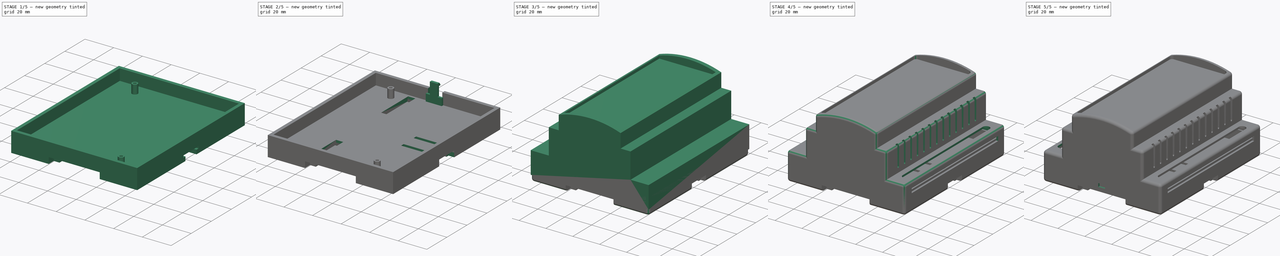
[diagram: build sequence overview — one tinted view per stage of 5, left to right]
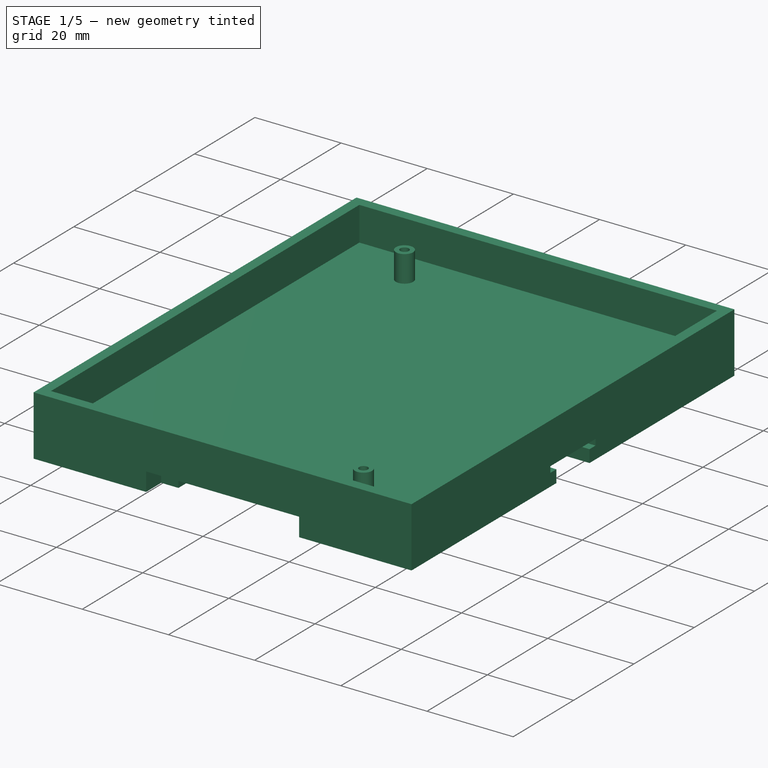
[diagram: stage 1 of 5 — iso view after this stage's code; geometry added in this stage tinted green]
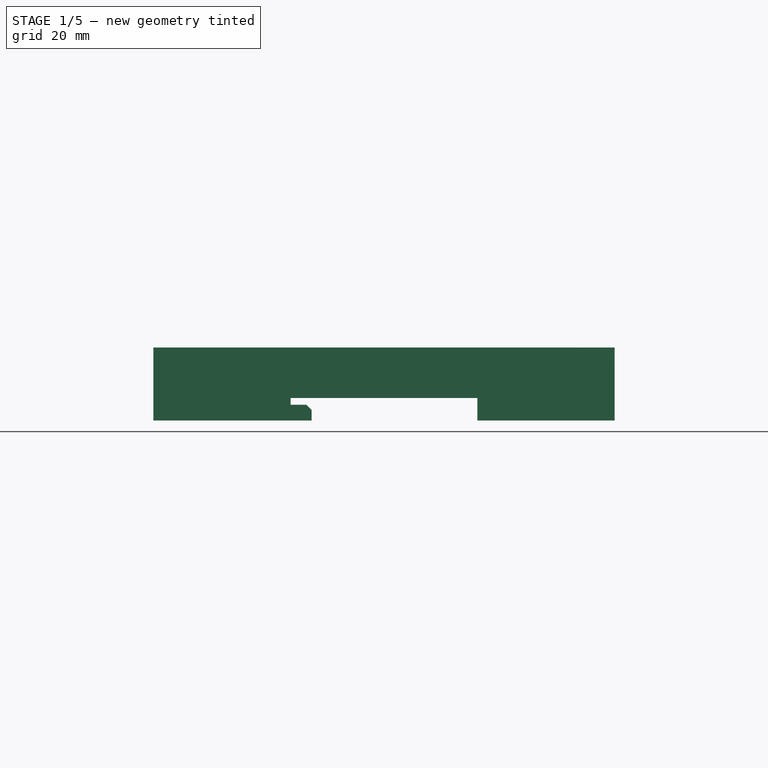
[diagram: stage 1 of 5 — front view after this stage's code; geometry added in this stage tinted green]
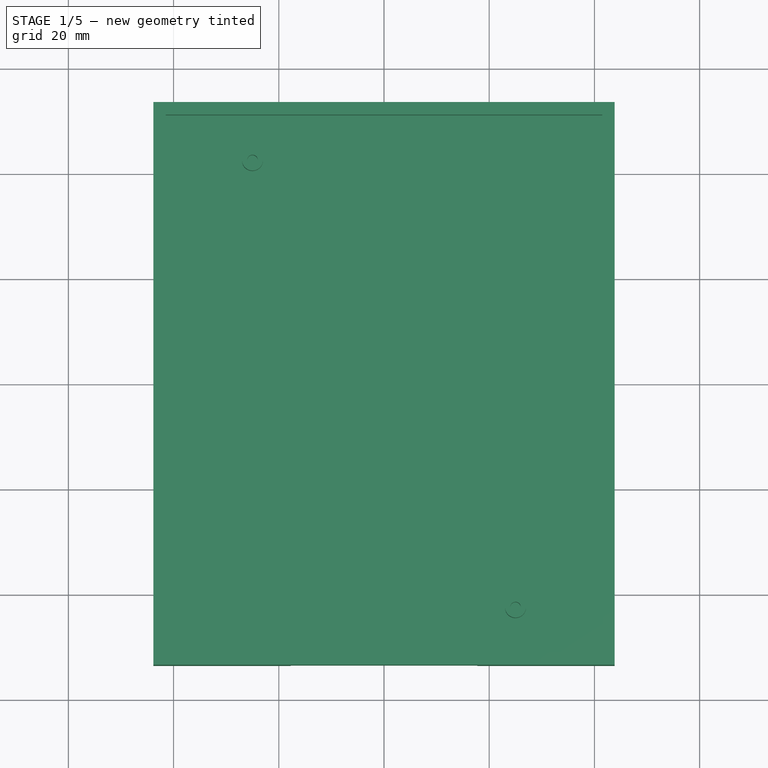
[diagram: stage 1 of 5 — top view after this stage's code; geometry added in this stage tinted green]
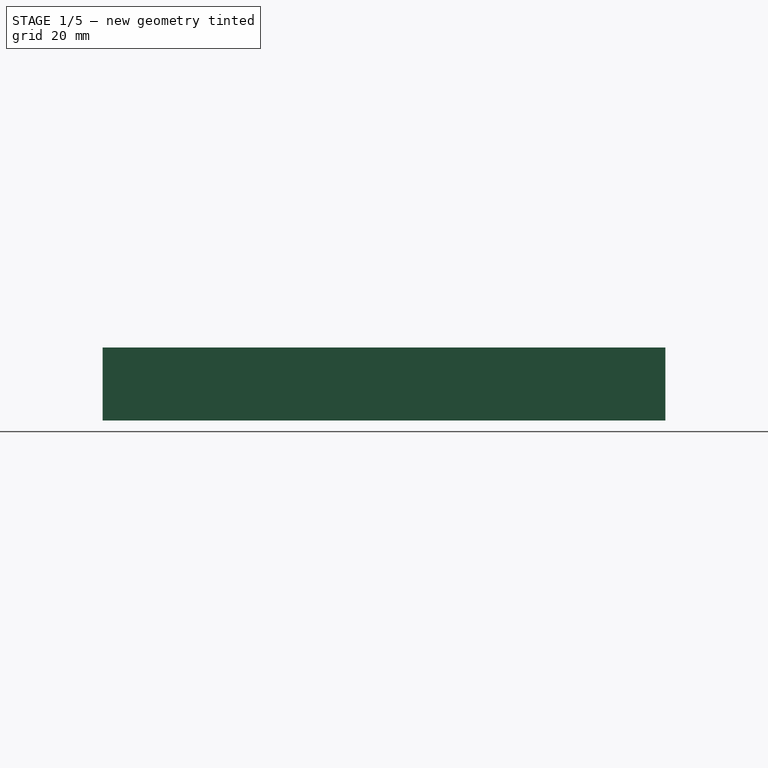
[diagram: stage 1 of 5 — right view after this stage's code; geometry added in this stage tinted green]
FCSTD DOCUMENT  (FreeCAD 1.0R39109 (Git))
Label: Case PLC
License: All rights reserved
LicenseURL: https://en.wikipedia.org/wiki/All_rights_reserved
objects: Sketcher::SketchObject×19, PartDesign::Pocket×11, PartDesign::Pad×7, PartDesign::Mirrored×4, PartDesign::Fillet×3, PartDesign::Chamfer×3, PartDesign::Body×2, PartDesign::Thickness×1, PartDesign::LinearPattern×1, PartDesign::MultiTransform×1
note: 127 computed .brp shape members not serialized (recipe doc carries the construction recipe); baked Part::Feature solids carry a one-line shape summary decoded from their .brp

FEATURE [PartDesign::Body] Body  label="Case"
  AllowCompound = false
  Group = -> [Sketch,Pad,Sketch001,Pocket,Thickness,Fillet,Sketch002,Pocket001,LinearPattern001,Mirrored,MultiTransform,Sketch003,Pocket002,Sketch004,Pocket003,Mirrored001,Sketch005,Pocket004,Sketch006,Sketch007,Pad001,Chamfer,Fillet001,Mirrored002]
  Origin = -> Origin
  Placement = pos=(0,-3.09944e-06,26) rot=(0,0,1;0rad)
  Tip = -> Mirrored002
FEATURE [Sketcher::SketchObject] Sketch008
  ArcFitTolerance = 1e-06
  AttachmentSupport = -> [XZ_Plane001]
  FullyConstrained = false
  MakeInternals = false
  MapMode = 5
  Placement = pos=(0,0,0) rot=(1,0,0;1.5708rad)
  sketch-geometry (9):
    g0: LineSegment [constr] StartX=0 StartY=0 StartZ=0 EndX=0 EndY=15.1963 EndZ=0
    g1: LineSegment StartX=43.85 StartY=9.6 StartZ=0 EndX=-43.85 EndY=9.6 EndZ=0
    g2: LineSegment StartX=-43.85 StartY=9.6 StartZ=0 EndX=-43.85 EndY=-4.3 EndZ=0
    g3: LineSegment StartX=-43.85 StartY=-4.3 StartZ=0 EndX=-17.75 EndY=-4.3 EndZ=0
    g4: LineSegment StartX=-17.75 StartY=-4.3 StartZ=0 EndX=-17.75 EndY=0 EndZ=0
    g5: LineSegment StartX=-17.75 StartY=0 StartZ=0 EndX=17.75 EndY=0 EndZ=0
    g6: LineSegment StartX=17.75 StartY=0 StartZ=0 EndX=17.75 EndY=-4.3 EndZ=0
    g7: LineSegment StartX=17.75 StartY=-4.3 StartZ=0 EndX=43.85 EndY=-4.3 EndZ=0
    g8: LineSegment StartX=43.85 StartY=-4.3 StartZ=0 EndX=43.85 EndY=9.6 EndZ=0
  constraints (24):
    c: Coincident(g0,g-1)
    c: PointOnObject(g0,g-2)
    c: Coincident(g1,g2)
    c: Vertical(g2)
    c: Coincident(g2,g3)
    c: Horizontal(g3)
    c: Coincident(g3,g4)
    c: Vertical(g4)
    c: Coincident(g4,g5)
    c: Coincident(g5,g6)
    c: Coincident(g6,g7)
    c: Horizontal(g7)
    c: Coincident(g7,g8)
    c: Coincident(g8,g1)
    c: Vertical(g8)
    c: Vertical(g6)
    c: Distance(g6,g4) = 35.5
    c: Symmetric(g1,g1,g0)
    c: Symmetric(g4,g5,g0)
    c: Distance(g1,g1) = 87.7
    c: DistanceY(g2,g2) = 13.9
    c: Equal(g8,g2)
    c: Distance(g4,g4) = 4.3
    c: PointOnObject(g0,g5)
FEATURE [PartDesign::Pad] Pad002
  Direction = (0,-1,2e-16)
  Length = 107
  Length2 = 10
  Midplane = true
  Placement = pos=(0,0,0) rot=(1,0,0;1.5708rad)
  Profile = -> Sketch008
  ReferenceAxis = -> Sketch008 [N_Axis]
  Refine = true
  Suppressed = false
  Type = 0
FEATURE [Sketcher::SketchObject] Sketch009
  ArcFitTolerance = 1e-06
  AttachmentSupport = -> [Pad002]
  ExternalGeometry = -> [Pad002]
  FullyConstrained = false
  MakeInternals = false
  MapMode = 5
  Placement = pos=(0,4.2e-15,9.6) rot=(0,0,1;3.14159rad)
  sketch-geometry (6):
    g0: LineSegment [constr] StartX=0 StartY=0 StartZ=0 EndX=-35.4746 EndY=0 EndZ=0
    g1: LineSegment [constr] StartX=0 StartY=0 StartZ=0 EndX=0 EndY=44.8903 EndZ=0
    g2: LineSegment StartX=41.5 StartY=-51.1 StartZ=0 EndX=41.5 EndY=51.1 EndZ=0
    g3: LineSegment StartX=41.5 StartY=51.1 StartZ=0 EndX=-41.5 EndY=51.1 EndZ=0
    g4: LineSegment StartX=-41.5 StartY=51.1 StartZ=0 EndX=-41.5 EndY=-51.1 EndZ=0
    g5: LineSegment StartX=-41.5 StartY=-51.1 StartZ=0 EndX=41.5 EndY=-51.1 EndZ=0
  constraints (14):
    c: Coincident(g0,g-1)
    c: PointOnObject(g0,g-1)
    c: Coincident(g1,g0)
    c: PointOnObject(g1,g-2)
    c: Vertical(g2)
    c: Coincident(g2,g3)
    c: Coincident(g3,g4)
    c: Coincident(g4,g5)
    c: Coincident(g5,g2)
    c: Horizontal(g5)
    c: Symmetric(g3,g4,g0)
    c: Symmetric(g2,g3,g1)
    c: Distance(g3,g3) = 83
    c: DistanceY(g2,g2) = 102.2
FEATURE [PartDesign::Pocket] Pocket005
  BaseFeature = -> Pad002
  Direction = (0,0,-1)
  Length = 7.9
  Length2 = 5
  Placement = pos=(0,0,0) rot=(1,0,0;1.5708rad)
  Profile = -> Sketch009
  ReferenceAxis = -> Sketch009 [N_Axis]
  Refine = true
  Suppressed = false
  Type = 0
FEATURE [Sketcher::SketchObject] Sketch010
  ArcFitTolerance = 1e-06
  AttachmentSupport = -> [Pocket005]
  FullyConstrained = false
  MakeInternals = false
  MapMode = 5
  Placement = pos=(0,0,1.7) rot=(0,0,1;3.14159rad)
  sketch-geometry (6):
    g0: Circle CenterX=25 CenterY=-42.5 CenterZ=0 NormalX=0 NormalY=0 NormalZ=1 AngleXU=0 Radius=1
    g1: Circle CenterX=25 CenterY=-42.5 CenterZ=0 NormalX=0 NormalY=0 NormalZ=1 AngleXU=0 Radius=2
    g2: Circle CenterX=-25 CenterY=42.5 CenterZ=0 NormalX=0 NormalY=0 NormalZ=1 AngleXU=0 Radius=1
    g3: Circle CenterX=-25 CenterY=42.5 CenterZ=0 NormalX=0 NormalY=0 NormalZ=1 AngleXU=0 Radius=2
    g4: LineSegment [constr] StartX=0 StartY=0 StartZ=0 EndX=38.4867 EndY=0 EndZ=0
    g5: LineSegment [constr] StartX=0 StartY=0 StartZ=0 EndX=0 EndY=-42.2581 EndZ=0
  constraints (14):
    c: Coincident(g1,g0)
    c: Coincident(g3,g2)
    c: Coincident(g4,g-1)
    c: PointOnObject(g4,g-1)
    c: Coincident(g5,g4)
    c: PointOnObject(g5,g-2)
    c: Distance(g0,g5) = 25
    c: Distance(g0,g4) = 42.5
    c: Distance(g2,g4) = 42.5
    c: Distance(g2,g5) = 25
    c: Diameter(g0) = 2
    c: Diameter(g1) = 4
    c: Diameter(g2) = 2
    c: Diameter(g3) = 4
FEATURE [PartDesign::Pad] Pad003
  BaseFeature = -> Pocket005
  Direction = (0,0,1)
  Length = 6.2
  Length2 = 10
  Placement = pos=(0,0,0) rot=(1,0,0;1.5708rad)
  Profile = -> Sketch010
  ReferenceAxis = -> Sketch010 [N_Axis]
  Refine = true
  Suppressed = false
  Type = 0
FEATURE [Sketcher::SketchObject] Sketch011
  ArcFitTolerance = 1e-06
  AttachmentSupport = -> [Pad003]
  ExternalGeometry = -> [Pad003]
  FullyConstrained = false
  MakeInternals = false
  MapMode = 5
  Placement = pos=(-17.75,0,0) rot=(0.707107,0,0.707107;3.14159rad)
  sketch-geometry (9):
    g0: LineSegment StartX=-4.3 StartY=-48.5 StartZ=0 EndX=-1.3 EndY=-48.5 EndZ=0
    g1: LineSegment StartX=-1.3 StartY=-48.5 StartZ=0 EndX=-1.3 EndY=-23.5 EndZ=0
    g2: LineSegment StartX=-1.3 StartY=-23.5 StartZ=0 EndX=-4.3 EndY=-23.5 EndZ=0
    g3: LineSegment StartX=-4.3 StartY=-23.5 StartZ=0 EndX=-4.3 EndY=-48.5 EndZ=0
    g4: LineSegment [constr] StartX=0 StartY=0 StartZ=0 EndX=-52.3729 EndY=0 EndZ=0
    g5: LineSegment StartX=-4.3 StartY=48.5 StartZ=0 EndX=-1.3 EndY=48.5 EndZ=0
    g6: LineSegment StartX=-1.3 StartY=48.5 StartZ=0 EndX=-1.3 EndY=23.5 EndZ=0
    g7: LineSegment StartX=-1.3 StartY=23.5 StartZ=0 EndX=-4.3 EndY=23.5 EndZ=0
    g8: LineSegment StartX=-4.3 StartY=23.5 StartZ=0 EndX=-4.3 EndY=48.5 EndZ=0
  constraints (26):
    c: Coincident(g0,g1)
    c: Vertical(g1)
    c: Coincident(g1,g2)
    c: PointOnObject(g2,g-3)
    c: Horizontal(g2)
    c: Coincident(g2,g3)
    c: Coincident(g3,g0)
    c: Vertical(g3)
    c: Horizontal(g0)
    c: Distance(g-4,g0) = 5
    c: Distance(g2,g2) = 3
    c: DistanceY(g1,g1) = 25
    c: Coincident(g4,g-1)
    c: PointOnObject(g4,g-1)
    c: Coincident(g5,g6)
    c: Vertical(g6)
    c: Coincident(g6,g7)
    c: Horizontal(g7)
    c: Coincident(g7,g8)
    c: Coincident(g8,g5)
    c: Vertical(g8)
    c: Horizontal(g5)
    c: Distance(g7,g7) = 3
    c: PointOnObject(g7,g-3)
    c: Distance(g-5,g5) = 5
    c: DistanceY(g6,g6) = 25
FEATURE [PartDesign::Pad] Pad004
  BaseFeature = -> Pad003
  Direction = (1,0,-2e-16)
  Length = 4
  Length2 = 10
  Placement = pos=(0,0,0) rot=(1,0,0;1.5708rad)
  Profile = -> Sketch011
  ReferenceAxis = -> Sketch011 [N_Axis]
  Refine = true
  Suppressed = false
  Type = 0
FEATURE [PartDesign::Chamfer] Chamfer001
  Angle = 45
  Base = -> Pad004 [Edge58,Edge51]
  BaseFeature = -> Pad004
  ChamferType = 0
  FlipDirection = false
  Placement = pos=(0,0,0) rot=(1,0,0;1.5708rad)
  Refine = true
  Size = 1
  Size2 = 1
  SupportTransform = false
  Suppressed = false
  UseAllEdges = false
FEATURE [Sketcher::SketchObject] Sketch012
  ArcFitTolerance = 1e-06
  AttachmentSupport = -> [Chamfer001]
  ExternalGeometry = -> [Chamfer001]
  FullyConstrained = false
  MakeInternals = false
  MapMode = 5
  Placement = pos=(43.85,0,0) rot=(0.707107,0,0.707107;3.14159rad)
  sketch-geometry (9):
    g0: LineSegment [constr] StartX=0 StartY=0 StartZ=0 EndX=-14.6453 EndY=0 EndZ=0
    g1: LineSegment StartX=-2.7e-15 StartY=7.5 StartZ=0 EndX=-1.4 EndY=7.5 EndZ=0
    g2: LineSegment StartX=-1.4 StartY=7.5 StartZ=0 EndX=-1.4 EndY=5.5 EndZ=0
    g3: LineSegment StartX=-1.4 StartY=5.5 StartZ=0 EndX=-6.4 EndY=5.5 EndZ=0
    g4: LineSegment StartX=-2.7e-15 StartY=-7.5 StartZ=0 EndX=-1.4 EndY=-7.50001 EndZ=0
    g5: LineSegment StartX=-1.4 StartY=-7.50001 StartZ=0 EndX=-1.4 EndY=-5.5 EndZ=0
    g6: LineSegment StartX=-1.4 StartY=-5.5 StartZ=0 EndX=-6.4 EndY=-5.5 EndZ=0
    g7: LineSegment StartX=-2.7e-15 StartY=7.5 StartZ=0 EndX=-2.7e-15 EndY=-7.5 EndZ=0
    g8: LineSegment StartX=-6.4 StartY=-5.5 StartZ=0 EndX=-6.4 EndY=5.5 EndZ=0
  constraints (24):
    c: Coincident(g0,g-1)
    c: PointOnObject(g0,g-1)
    c: PointOnObject(g1,g-3)
    c: Horizontal(g1)
    c: Coincident(g1,g2)
    c: Vertical(g2)
    c: Coincident(g2,g3)
    c: Horizontal(g3)
    c: Coincident(g4,g5)
    c: Coincident(g5,g6)
    c: Coincident(g1,g7)
    c: Coincident(g7,g4)
    c: Coincident(g6,g8)
    c: Coincident(g8,g3)
    c: Vertical(g8)
    c: Symmetric(g2,g5,g0)
    c: Vertical(g5)
    c: Equal(g1,g4)
    c: Equal(g3,g6)
    c: Symmetric(g1,g4,g0)
    c: DistanceX(g1,g1) = 1.4
    c: DistanceY(g7,g7) = 15
    c: Distance(g2,g2) = 2
    c: Distance(g6,g6) = 5
FEATURE [PartDesign::Pocket] Pocket006
  BaseFeature = -> Chamfer001
  Direction = (-1,0,2e-16)
  Length = 0
  Length2 = 5
  Placement = pos=(0,0,0) rot=(1,0,0;1.5708rad)
  Profile = -> Sketch012
  ReferenceAxis = -> Sketch012 [N_Axis]
  Refine = true
  Suppressed = false
  Type = 3
  UpToFace = -> Chamfer001 [Face17]
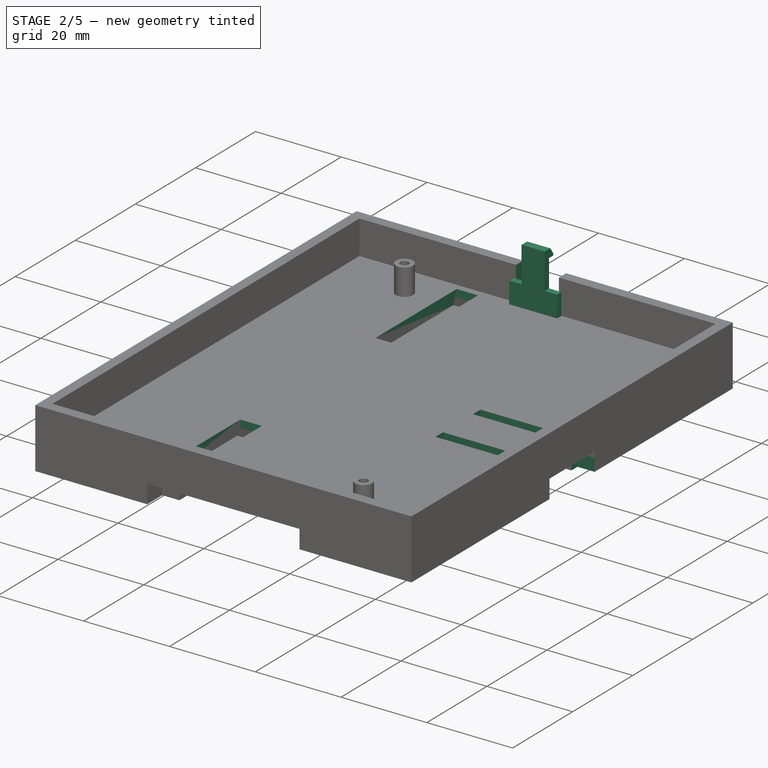
[diagram: stage 2 of 5 — iso view after this stage's code; geometry added in this stage tinted green]
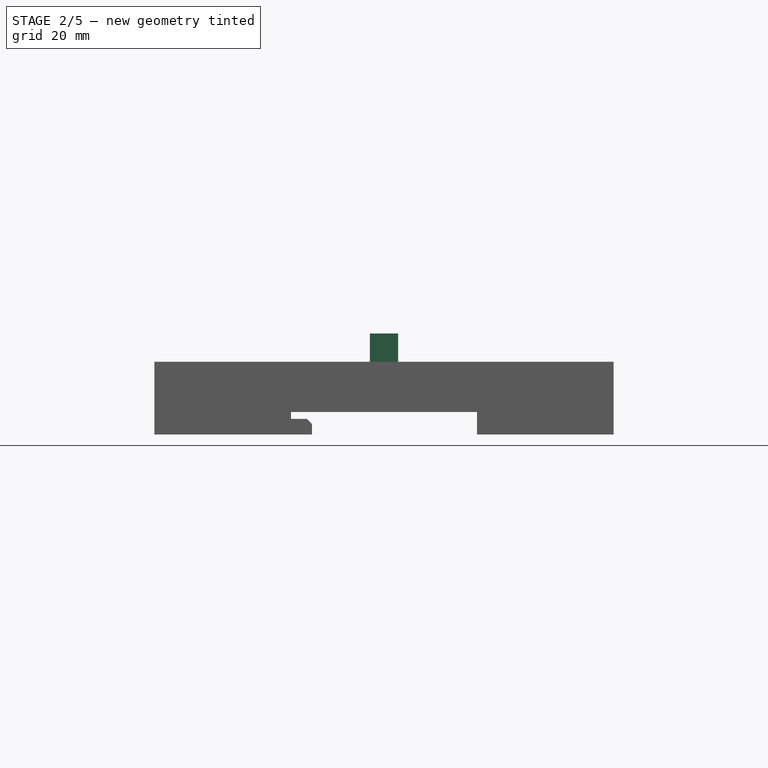
[diagram: stage 2 of 5 — front view after this stage's code; geometry added in this stage tinted green]
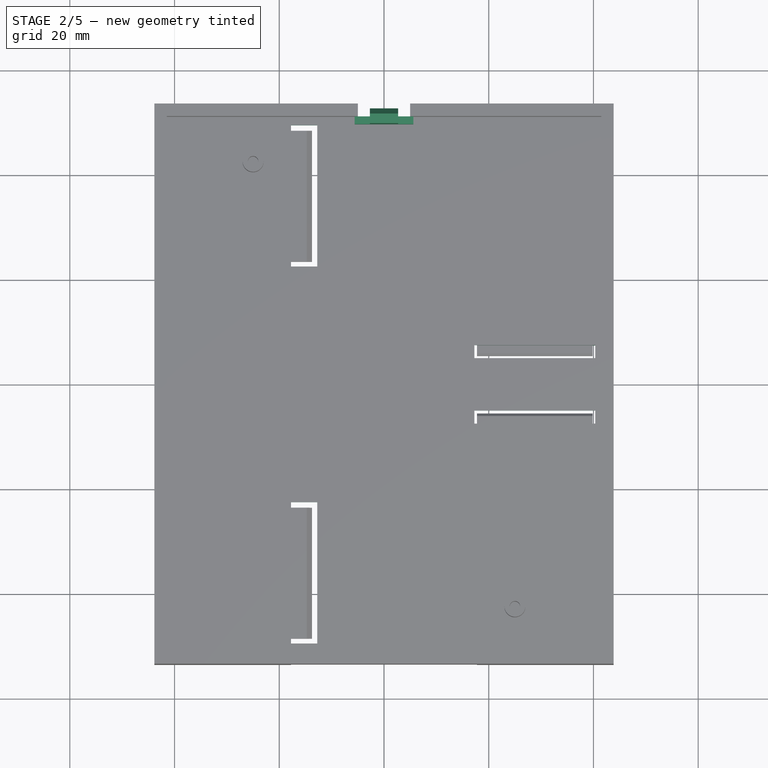
[diagram: stage 2 of 5 — top view after this stage's code; geometry added in this stage tinted green]
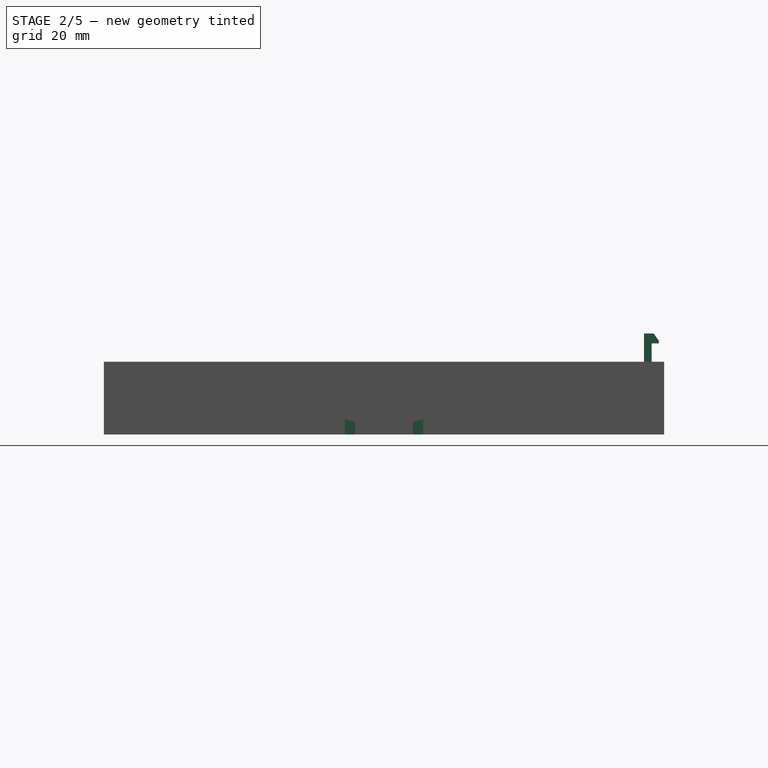
[diagram: stage 2 of 5 — right view after this stage's code; geometry added in this stage tinted green]
FEATURE [PartDesign::Chamfer] Chamfer002
  Angle = 45
  Base = -> Pocket006 [Edge88,Edge85]
  BaseFeature = -> Pocket006
  ChamferType = 0
  FlipDirection = false
  Placement = pos=(0,0,0) rot=(1,0,0;1.5708rad)
  Refine = true
  Size = 0.5
  Size2 = 1
  SupportTransform = false
  Suppressed = false
  UseAllEdges = false
FEATURE [Sketcher::SketchObject] Sketch013
  ArcFitTolerance = 1e-06
  AttachmentSupport = -> [Chamfer002]
  ExternalGeometry = -> [Chamfer002]
  FullyConstrained = true
  MakeInternals = false
  MapMode = 5
  Placement = pos=(43.85,0,0) rot=(0.707107,0,0.707107;3.14159rad)
  sketch-geometry (4):
    g0: LineSegment StartX=0 StartY=7.5 StartZ=0 EndX=-4.3 EndY=7.5 EndZ=0
    g1: LineSegment StartX=-4.3 StartY=7.5 StartZ=0 EndX=-4.3 EndY=-7.5 EndZ=0
    g2: LineSegment StartX=-4.3 StartY=-7.5 StartZ=0 EndX=0 EndY=-7.5 EndZ=0
    g3: LineSegment StartX=0 StartY=-7.5 StartZ=0 EndX=0 EndY=7.5 EndZ=0
  constraints (10):
    c: Coincident(g0,g1)
    c: Coincident(g1,g2)
    c: Coincident(g2,g3)
    c: Coincident(g3,g0)
    c: Horizontal(g0)
    c: Horizontal(g2)
    c: Vertical(g1)
    c: Coincident(g0,g-3)
    c: Coincident(g2,g-3)
    c: PointOnObject(g1,g-4)
FEATURE [PartDesign::Pocket] Pocket007
  BaseFeature = -> Chamfer002
  Direction = (-1,0,2e-16)
  Length = 4
  Length2 = 5
  Placement = pos=(0,0,0) rot=(1,0,0;1.5708rad)
  Profile = -> Sketch013
  ReferenceAxis = -> Sketch013 [N_Axis]
  Refine = true
  Suppressed = false
  Type = 0
FEATURE [Sketcher::SketchObject] Sketch014
  ArcFitTolerance = 1e-06
  AttachmentSupport = -> [Pocket007]
  ExternalGeometry = -> [Pocket007]
  FullyConstrained = false
  MakeInternals = false
  MapMode = 5
  Placement = pos=(0,0,1.7) rot=(0,0,1;3.14159rad)
  sketch-geometry (18):
    g0: LineSegment StartX=-40.35 StartY=-7.5 StartZ=0 EndX=-40.35 EndY=-5 EndZ=0
    g1: LineSegment StartX=-40.35 StartY=-5 StartZ=0 EndX=-17.25 EndY=-5 EndZ=0
    g2: LineSegment StartX=-17.25 StartY=-5 StartZ=0 EndX=-17.25 EndY=-7.5 EndZ=0
    g3: LineSegment StartX=-17.25 StartY=-7.5 StartZ=0 EndX=-40.35 EndY=-7.5 EndZ=0
    g4: LineSegment [constr] StartX=0 StartY=0 StartZ=0 EndX=-72.5653 EndY=0 EndZ=0
    g5: LineSegment [constr] StartX=0 StartY=0 StartZ=0 EndX=0 EndY=-48.0211 EndZ=0
    g6: LineSegment StartX=17.75 StartY=-22.5 StartZ=0 EndX=12.75 EndY=-22.5 EndZ=0
    g7: LineSegment StartX=12.75 StartY=-22.5 StartZ=0 EndX=12.75 EndY=-49.5 EndZ=0
    g8: LineSegment StartX=12.75 StartY=-49.5 StartZ=0 EndX=17.75 EndY=-49.5 EndZ=0
    g9: LineSegment StartX=17.75 StartY=-49.5 StartZ=0 EndX=17.75 EndY=-22.5 EndZ=0
    g10: LineSegment StartX=-40.35 StartY=7.5 StartZ=0 EndX=-40.35 EndY=5 EndZ=0
    g11: LineSegment StartX=-40.35 StartY=5 StartZ=0 EndX=-17.25 EndY=5 EndZ=0
    g12: LineSegment StartX=-17.25 StartY=5 StartZ=0 EndX=-17.25 EndY=7.5 EndZ=0
    g13: LineSegment StartX=-17.25 StartY=7.5 StartZ=0 EndX=-40.35 EndY=7.5 EndZ=0
    g14: LineSegment StartX=17.75 StartY=22.5 StartZ=0 EndX=12.75 EndY=22.5 EndZ=0
    g15: LineSegment StartX=12.75 StartY=22.5 StartZ=0 EndX=12.75 EndY=49.5 EndZ=0
    g16: LineSegment StartX=12.75 StartY=49.5 StartZ=0 EndX=17.75 EndY=49.5 EndZ=0
    g17: LineSegment StartX=17.75 StartY=49.5 StartZ=0 EndX=17.75 EndY=22.5 EndZ=0
  constraints (36):
    c: Vertical(g0)
    c: Coincident(g0,g1)
    c: Horizontal(g1)
    c: Coincident(g1,g2)
    c: Vertical(g2)
    c: Coincident(g2,g3)
    c: Coincident(g3,g0)
    c: Horizontal(g3)
    c: Coincident(g4,g-1)
    c: PointOnObject(g4,g-1)
    c: Coincident(g5,g4)
    c: PointOnObject(g5,g-2)
    c: Distance(g-5,g0) = 0.5
    c: Distance(g-4,g1) = 0.5
    c: Distance(g-3,g2) = 0.5
    c: Horizontal(g6)
    c: Coincident(g6,g7)
    c: Vertical(g7)
    c: Coincident(g7,g8)
    c: Horizontal(g8)
    c: Coincident(g8,g9)
    c: Coincident(g9,g6)
    c: Vertical(g9)
    c: Distance(g-8,g6) = 1
    c: Distance(g-6,g7) = 1
    c: Distance(g8,g-7) = 1
    c: PointOnObject(g-5,g3)
    c: PointOnObject(g-8,g9)
    c: Coincident(g10,g11)
    c: Coincident(g11,g12)
    c: Coincident(g12,g13)
    c: Coincident(g13,g10)
    c: Coincident(g14,g15)
    c: Coincident(g15,g16)
    c: Coincident(g16,g17)
    c: Coincident(g17,g14)
FEATURE [PartDesign::Pocket] Pocket008
  BaseFeature = -> Pocket007
  Direction = (0,0,-1)
  Length = 0
  Length2 = 5
  Placement = pos=(0,0,0) rot=(1,0,0;1.5708rad)
  Profile = -> Sketch014
  ReferenceAxis = -> Sketch014 [N_Axis]
  Refine = true
  Suppressed = false
  Type = 3
  UpToFace = -> Pocket007 [Face45]
FEATURE [Sketcher::SketchObject] Sketch015
  ArcFitTolerance = 1e-06
  AttachmentSupport = -> [YZ_Plane001]
  ExternalGeometry = -> [Pocket008]
  FullyConstrained = false
  MakeInternals = false
  MapMode = 5
  Placement = pos=(0,0,0) rot=(0.57735,0.57735,0.57735;2.0944rad)
  sketch-geometry (5):
    g0: LineSegment [constr] StartX=0 StartY=0 StartZ=0 EndX=0 EndY=60.6652 EndZ=0
    g1: LineSegment StartX=53.5 StartY=-4.3 StartZ=0 EndX=53.5 EndY=9.6 EndZ=0
    g2: LineSegment StartX=53.5 StartY=9.6 StartZ=0 EndX=49.65 EndY=9.6 EndZ=0
    g3: LineSegment StartX=49.65 StartY=9.6 StartZ=0 EndX=49.65 EndY=-4.3 EndZ=0
    g4: LineSegment StartX=49.65 StartY=-4.3 StartZ=0 EndX=53.5 EndY=-4.3 EndZ=0
  constraints (12):
    c: Coincident(g0,g-1)
    c: PointOnObject(g0,g-2)
    c: Coincident(g-3,g1)
    c: Coincident(g1,g-3)
    c: Coincident(g1,g2)
    c: Horizontal(g2)
    c: Coincident(g2,g3)
    c: Vertical(g3)
    c: Coincident(g3,g4)
    c: Coincident(g4,g1)
    c: Horizontal(g4)
    c: Distance(g0,g3) = 49.65
FEATURE [PartDesign::Pocket] Pocket009
  BaseFeature = -> Pocket008
  Direction = (-1,0,0)
  Length = 10
  Length2 = 5
  Midplane = true
  Placement = pos=(0,0,0) rot=(1,0,0;1.5708rad)
  Profile = -> Sketch015
  ReferenceAxis = -> Sketch015 [N_Axis]
  Refine = true
  Suppressed = false
  Type = 0
FEATURE [Sketcher::SketchObject] Sketch016
  ArcFitTolerance = 1e-06
  AttachmentSupport = -> [YZ_Plane001]
  ExternalGeometry = -> [Pocket009]
  FullyConstrained = false
  MakeInternals = false
  MapMode = 5
  Placement = pos=(0,0,0) rot=(0.57735,0.57735,0.57735;2.0944rad)
  sketch-geometry (8):
    g0: LineSegment [constr] StartX=0 StartY=0 StartZ=0 EndX=0 EndY=24.5525 EndZ=0
    g1: LineSegment StartX=49.65 StartY=0 StartZ=0 EndX=49.65 EndY=15 EndZ=0
    g2: LineSegment StartX=49.65 StartY=15 StartZ=0 EndX=51.5 EndY=15 EndZ=0
    g3: LineSegment StartX=51.5 StartY=15 StartZ=0 EndX=52.5 EndY=13.6 EndZ=0
    g4: LineSegment StartX=52.5 StartY=13.6 StartZ=0 EndX=52.5 EndY=13.1 EndZ=0
    g5: LineSegment StartX=52.5 StartY=13.1 StartZ=0 EndX=51.1 EndY=13.1 EndZ=0
    g6: LineSegment StartX=51.1 StartY=13.1 StartZ=0 EndX=51.1 EndY=-3.38e-14 EndZ=0
    g7: LineSegment StartX=51.1 StartY=-3.38e-14 StartZ=0 EndX=49.65 EndY=0 EndZ=0
  constraints (22):
    c: Coincident(g0,g-1)
    c: PointOnObject(g0,g-2)
    c: Coincident(g-6,g1)
    c: Vertical(g1)
    c: Coincident(g1,g2)
    c: Horizontal(g2)
    c: Coincident(g2,g3)
    c: Coincident(g3,g4)
    c: Vertical(g4)
    c: Coincident(g4,g5)
    c: Horizontal(g5)
    c: Coincident(g5,g6)
    c: PointOnObject(g6,g-5)
    c: Vertical(g6)
    c: Coincident(g6,g7)
    c: Coincident(g7,g1)
    c: PointOnObject(g-4,g6)
    c: Distance(g-3,g5) = 3.5
    c: Distance(g-3,g2) = 5.4
    c: Distance(g-5,g4) = 1
    c: DistanceY(g4,g4) = 0.5
    c: DistanceX(g2,g3) = 1
FEATURE [PartDesign::Pad] Pad005
  BaseFeature = -> Pocket009
  Direction = (1,0,0)
  Length = 5.4
  Length2 = 10
  Midplane = true
  Placement = pos=(0,0,0) rot=(1,0,0;1.5708rad)
  Profile = -> Sketch016
  ReferenceAxis = -> Sketch016 [N_Axis]
  Refine = true
  Suppressed = false
  Type = 0
FEATURE [Sketcher::SketchObject] Sketch017
  ArcFitTolerance = 1e-06
  AttachmentSupport = -> [YZ_Plane001]
  ExternalGeometry = -> [Pad005]
  FullyConstrained = true
  MakeInternals = false
  MapMode = 5
  Placement = pos=(0,0,0) rot=(0.57735,0.57735,0.57735;2.0944rad)
  sketch-geometry (4):
    g0: LineSegment StartX=49.65 StartY=0 StartZ=0 EndX=51.1 EndY=0 EndZ=0
    g1: LineSegment StartX=51.1 StartY=0 StartZ=0 EndX=51.1 EndY=6.7 EndZ=0
    g2: LineSegment StartX=51.1 StartY=6.7 StartZ=0 EndX=49.65 EndY=6.7 EndZ=0
    g3: LineSegment StartX=49.65 StartY=6.7 StartZ=0 EndX=49.65 EndY=0 EndZ=0
  constraints (10):
    c: Coincident(g-5,g0)
    c: Coincident(g0,g-4)
    c: Coincident(g0,g1)
    c: PointOnObject(g1,g-3)
    c: Coincident(g1,g2)
    c: PointOnObject(g2,g-6)
    c: Coincident(g2,g3)
    c: Coincident(g3,g0)
    c: Horizontal(g2)
    c: DistanceY(g-6,g1) = 5
FEATURE [PartDesign::Pad] Pad006
  BaseFeature = -> Pad005
  Direction = (1,0,0)
  Length = 11.2
  Length2 = 10
  Midplane = true
  Placement = pos=(0,0,0) rot=(1,0,0;1.5708rad)
  Profile = -> Sketch017
  ReferenceAxis = -> Sketch017 [N_Axis]
  Refine = true
  Suppressed = false
  Type = 0
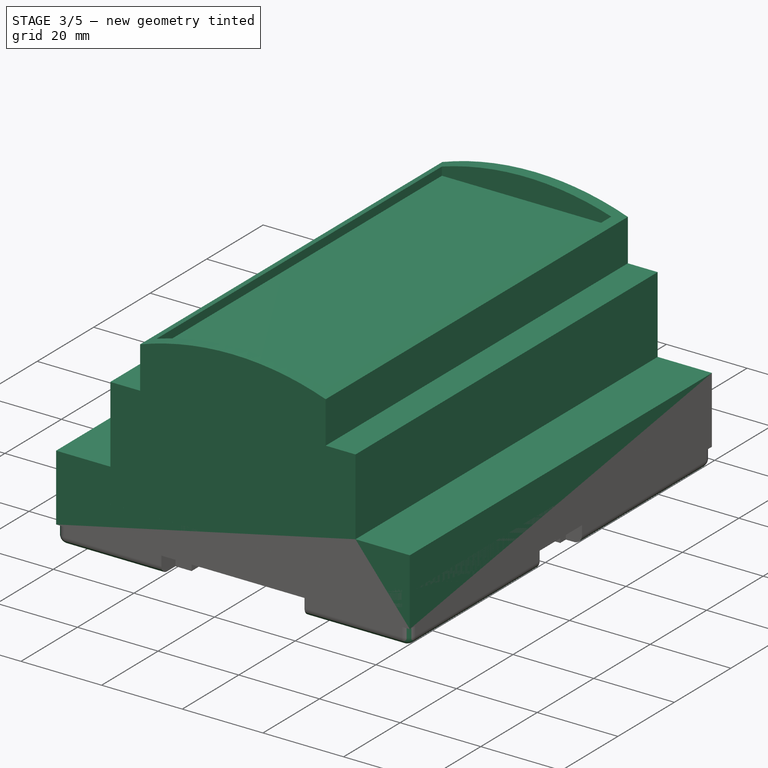
[diagram: stage 3 of 5 — iso view after this stage's code; geometry added in this stage tinted green]
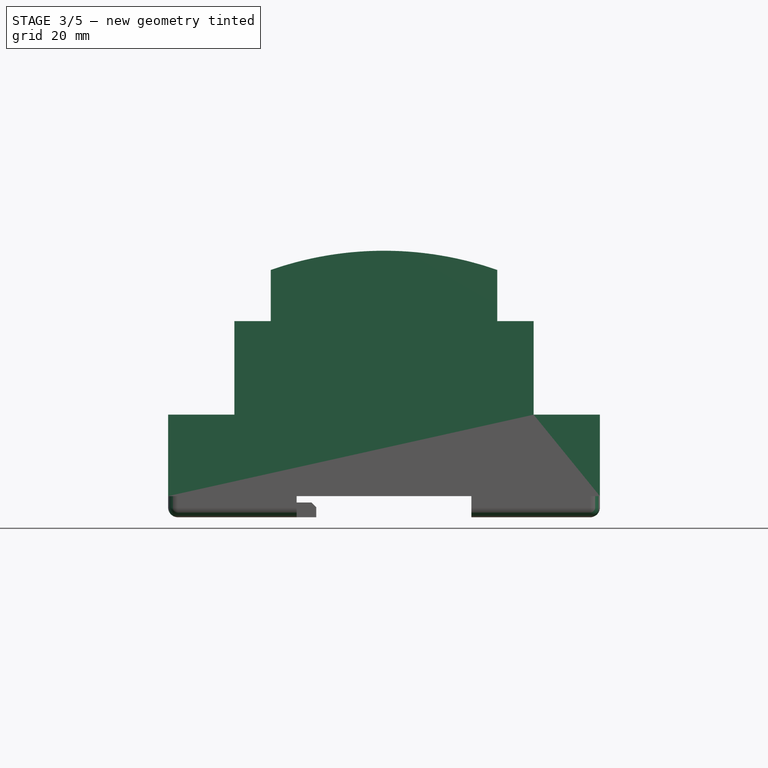
[diagram: stage 3 of 5 — front view after this stage's code; geometry added in this stage tinted green]
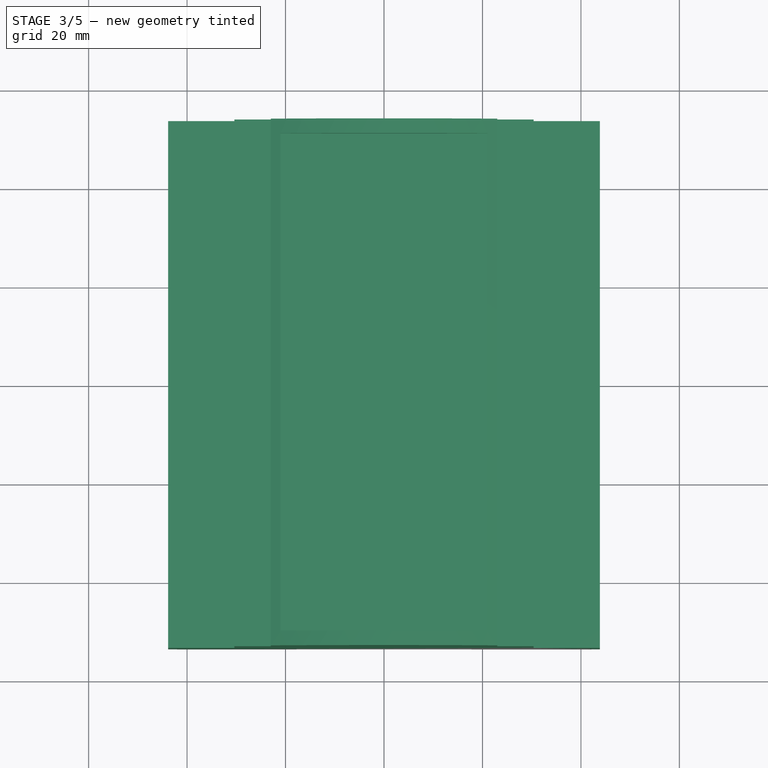
[diagram: stage 3 of 5 — top view after this stage's code; geometry added in this stage tinted green]
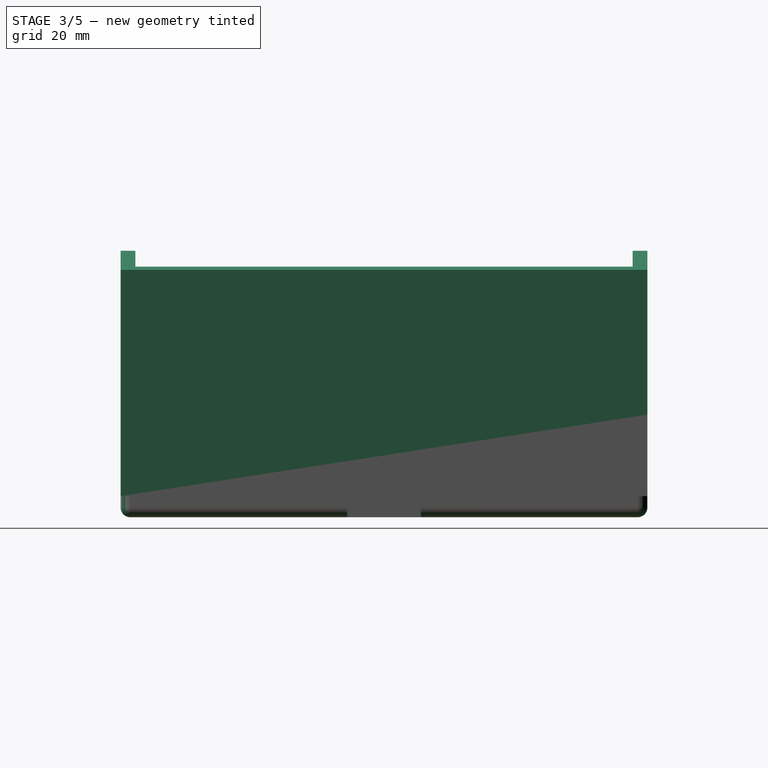
[diagram: stage 3 of 5 — right view after this stage's code; geometry added in this stage tinted green]
FEATURE [Sketcher::SketchObject] Sketch
  ArcFitTolerance = 1e-06
  AttachmentSupport = -> [XZ_Plane]
  FullyConstrained = false
  MakeInternals = false
  MapMode = 5
  Placement = pos=(0,0,0) rot=(1,0,0;1.5708rad)
  sketch-geometry (16):
    g0: LineSegment [constr] StartX=0 StartY=0 StartZ=0 EndX=0 EndY=133.62 EndZ=0
    g1: LineSegment StartX=43.85 StartY=0 StartZ=0 EndX=43.85 EndY=16.54 EndZ=0
    g2: LineSegment StartX=43.85 StartY=16.54 StartZ=0 EndX=30.4 EndY=16.54 EndZ=0
    g3: LineSegment StartX=30.4 StartY=16.54 StartZ=0 EndX=30.4 EndY=35.54 EndZ=0
    g4: LineSegment StartX=30.4 StartY=35.54 StartZ=0 EndX=23 EndY=35.54 EndZ=0
    g5: LineSegment [constr] StartX=-23 StartY=44.54 StartZ=0 EndX=0 EndY=44.54 EndZ=0
    g6: LineSegment StartX=-30.4 StartY=16.54 StartZ=0 EndX=-30.4 EndY=35.54 EndZ=0
    g7: LineSegment StartX=-30.4 StartY=35.54 StartZ=0 EndX=-23 EndY=35.54 EndZ=0
    g8: LineSegment StartX=-43.85 StartY=16.54 StartZ=0 EndX=-30.4 EndY=16.54 EndZ=0
    g9: LineSegment StartX=-43.85 StartY=0 StartZ=0 EndX=-43.85 EndY=16.54 EndZ=0
    g10: LineSegment StartX=0 StartY=0 StartZ=0 EndX=-43.85 EndY=0 EndZ=0
    g11: ArcOfCircle CenterX=0 CenterY=-19.9305 CenterZ=0 NormalX=0 NormalY=0 NormalZ=1 AngleXU=0 Radius=69.7705 StartAngle=1.23486 EndAngle=1.90673
    g12: LineSegment StartX=0 StartY=0 StartZ=0 EndX=43.85 EndY=0 EndZ=0
    g13: LineSegment [constr] StartX=0 StartY=44.54 StartZ=0 EndX=23 EndY=44.54 EndZ=0
    g14: LineSegment StartX=23 StartY=35.54 StartZ=0 EndX=23 EndY=45.94 EndZ=0
    g15: LineSegment StartX=-23 StartY=35.54 StartZ=0 EndX=-23 EndY=45.94 EndZ=0
  constraints (44):
    c: Coincident(g0,g-1)
    c: PointOnObject(g0,g-2)
    c: PointOnObject(g1,g-1)
    c: Coincident(g1,g2)
    c: Horizontal(g2)
    c: Coincident(g2,g3)
    c: Coincident(g3,g4)
    c: Horizontal(g4)
    c: DistanceY(g1,g1) = 16.54
    c: Distance(g0,g4) = 35.54
    c: Coincident(g10,g9)
    c: Coincident(g9,g8)
    c: Coincident(g6,g7)
    c: Equal(g6,g3)
    c: Equal(g8,g2)
    c: Equal(g7,g4)
    c: DistanceY(g5,g11) = 1.4
    c: Coincident(g10,g0)
    c: Coincident(g8,g6)
    c: Coincident(g0,g12)
    c: Coincident(g12,g1)
    c: Symmetric(g1,g9,g0)
    c: Symmetric(g1,g8,g0)
    c: Symmetric(g3,g6,g0)
    c: Symmetric(g13,g5,g0)
    c: Coincident(g5,g13)
    c: PointOnObject(g5,g0)
    c: Horizontal(g13)
    c: Distance(g11,g13) = -5.3
    c: Distance(g12,g13) = 44.54
    c: Coincident(g4,g14)
    c: Coincident(g14,g11)
    c: Coincident(g7,g15)
    c: Coincident(g15,g11)
    c: PointOnObject(g11,g-2)
    c: DistanceX(g11,g11) = 46
    c: Equal(g14,g15)
    c: Horizontal(g7)
    c: PointOnObject(g13,g14)
    c: DistanceX(g6,g2) = 60.8
    c: DistanceX(g9,g1) = 87.7
    c: Vertical(g1)
    c: Vertical(g3)
    c: Vertical(g14)
FEATURE [PartDesign::Pad] Pad
  Direction = (0,-1,2e-16)
  Length = 107
  Length2 = 10
  Midplane = true
  Placement = pos=(0,0,0) rot=(1,0,0;1.5708rad)
  Profile = -> Sketch
  ReferenceAxis = -> Sketch [N_Axis]
  Refine = true
  Suppressed = false
  Type = 0
FEATURE [Sketcher::SketchObject] Sketch001
  ArcFitTolerance = 1e-06
  AttachmentSupport = -> [XZ_Plane]
  FullyConstrained = true
  MakeInternals = false
  MapMode = 5
  Placement = pos=(0,0,0) rot=(1,0,0;1.5708rad)
  sketch-geometry (6):
    g0: LineSegment [constr] StartX=0 StartY=0 StartZ=0 EndX=0 EndY=44.54 EndZ=0
    g1: LineSegment StartX=0 StartY=44.54 StartZ=0 EndX=21 EndY=44.54 EndZ=0
    g2: LineSegment StartX=21 StartY=44.54 StartZ=0 EndX=21 EndY=50.54 EndZ=0
    g3: LineSegment StartX=21 StartY=50.54 StartZ=0 EndX=-21 EndY=50.54 EndZ=0
    g4: LineSegment StartX=-21 StartY=50.54 StartZ=0 EndX=-21 EndY=44.54 EndZ=0
    g5: LineSegment StartX=-21 StartY=44.54 StartZ=0 EndX=0 EndY=44.54 EndZ=0
  constraints (17):
    c: Coincident(g0,g-1)
    c: PointOnObject(g0,g-2)
    c: Distance(g0,g0) = 44.54
    c: Coincident(g0,g1)
    c: Horizontal(g1)
    c: Coincident(g1,g2)
    c: Vertical(g2)
    c: Coincident(g2,g3)
    c: Horizontal(g3)
    c: Coincident(g3,g4)
    c: Vertical(g4)
    c: Coincident(g4,g5)
    c: Coincident(g5,g1)
    c: Horizontal(g5)
    c: Distance(g3,g3) = 42
    c: DistanceY(g2,g2) = 6
    c: Equal(g1,g5)
FEATURE [PartDesign::Pocket] Pocket
  BaseFeature = -> Pad
  Direction = (0,1,-2e-16)
  Length = 101
  Length2 = 5
  Midplane = true
  Placement = pos=(0,0,0) rot=(1,0,0;1.5708rad)
  Profile = -> Sketch001
  ReferenceAxis = -> Sketch001 [N_Axis]
  Refine = true
  Suppressed = false
  Type = 0
FEATURE [PartDesign::Mirrored] Mirrored003
  BaseFeature = -> Pad006
  MirrorPlane = -> XZ_Plane001
  Originals = -> [Pocket009,Pad005,Pad006]
  Placement = pos=(0,0,0) rot=(1,0,0;1.5708rad)
  Refine = true
  Suppressed = false
  TransformMode = 0
FEATURE [PartDesign::Fillet] Fillet002
  Base = -> Mirrored003 [Edge147,Edge146,Edge163,Edge179,Edge178,Edge149,Edge137,Edge136,Edge123,Edge122,Edge199]
  BaseFeature = -> Mirrored003
  Placement = pos=(0,0,0) rot=(1,0,0;1.5708rad)
  Radius = 2
  Refine = true
  SupportTransform = false
  Suppressed = false
  UseAllEdges = false
FEATURE [Sketcher::SketchObject] Sketch018
  ArcFitTolerance = 1e-06
  AttachmentSupport = -> [Fillet002]
  ExternalGeometry = -> [Fillet002]
  FullyConstrained = true
  MakeInternals = false
  MapMode = 5
  Placement = pos=(0,4.2e-15,9.6) rot=(0,0,1;3.14159rad)
  sketch-geometry (8):
    g0: LineSegment StartX=43.85 StartY=-53.5 StartZ=0 EndX=43.85 EndY=53.5 EndZ=0
    g1: LineSegment StartX=43.85 StartY=53.5 StartZ=0 EndX=-43.85 EndY=53.5 EndZ=0
    g2: LineSegment StartX=-43.85 StartY=53.5 StartZ=0 EndX=-43.85 EndY=-53.5 EndZ=0
    g3: LineSegment StartX=-43.85 StartY=-53.5 StartZ=0 EndX=43.85 EndY=-53.5 EndZ=0
    g4: LineSegment StartX=42.42 StartY=-52.07 StartZ=0 EndX=42.42 EndY=52.07 EndZ=0
    g5: LineSegment StartX=42.42 StartY=52.07 StartZ=0 EndX=-42.42 EndY=52.07 EndZ=0
    g6: LineSegment StartX=-42.42 StartY=52.07 StartZ=0 EndX=-42.42 EndY=-52.07 EndZ=0
    g7: LineSegment StartX=-42.42 StartY=-52.07 StartZ=0 EndX=42.42 EndY=-52.07 EndZ=0
  constraints (24):
    c: Coincident(g0,g1)
    c: Coincident(g1,g2)
    c: Coincident(g2,g3)
    c: Coincident(g3,g0)
    c: Vertical(g0)
    c: Vertical(g2)
    c: Horizontal(g1)
    c: Horizontal(g3)
    c: PointOnObject(g-10,g3)
    c: PointOnObject(g-13,g1)
    c: PointOnObject(g-3,g2)
    c: PointOnObject(g-8,g0)
    c: Coincident(g4,g5)
    c: Coincident(g5,g6)
    c: Coincident(g6,g7)
    c: Coincident(g7,g4)
    c: Vertical(g4)
    c: Vertical(g6)
    c: Horizontal(g5)
    c: Horizontal(g7)
    c: Distance(g2,g6) = 1.43
    c: Distance(g1,g5) = 1.43
    c: Distance(g0,g4) = 1.43
    c: Distance(g3,g7) = 1.43
FEATURE [PartDesign::Pocket] Pocket010
  BaseFeature = -> Fillet002
  Direction = (0,0,-1)
  Length = 1.4
  Length2 = 5
  Placement = pos=(0,0,0) rot=(1,0,0;1.5708rad)
  Profile = -> Sketch018
  ReferenceAxis = -> Sketch018 [N_Axis]
  Refine = true
  Suppressed = false
  Type = 0
FEATURE [PartDesign::Body] Body001  label="Base"
  AllowCompound = false
  Group = -> [Sketch008,Pad002,Sketch009,Pocket005,Sketch010,Pad003,Sketch011,Pad004,Chamfer001,Sketch012,Pocket006,Chamfer002,Sketch013,Pocket007,Sketch014,Pocket008,Sketch015,Pocket009,Sketch016,Pad005,Sketch017,Pad006,Mirrored003,Fillet002,Sketch018,Pocket010]
  Origin = -> Origin001
  Tip = -> Pocket010
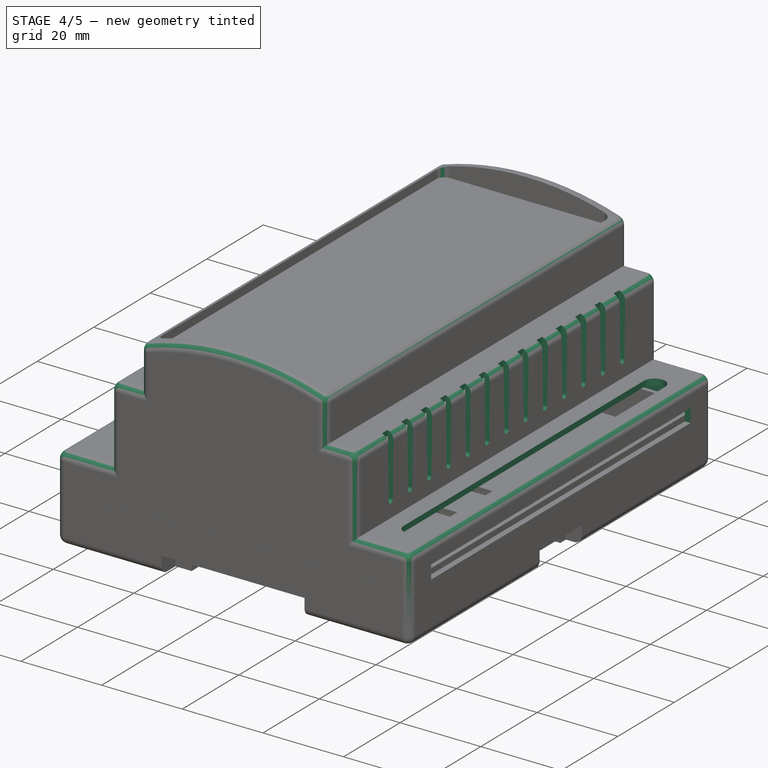
[diagram: stage 4 of 5 — iso view after this stage's code; geometry added in this stage tinted green]
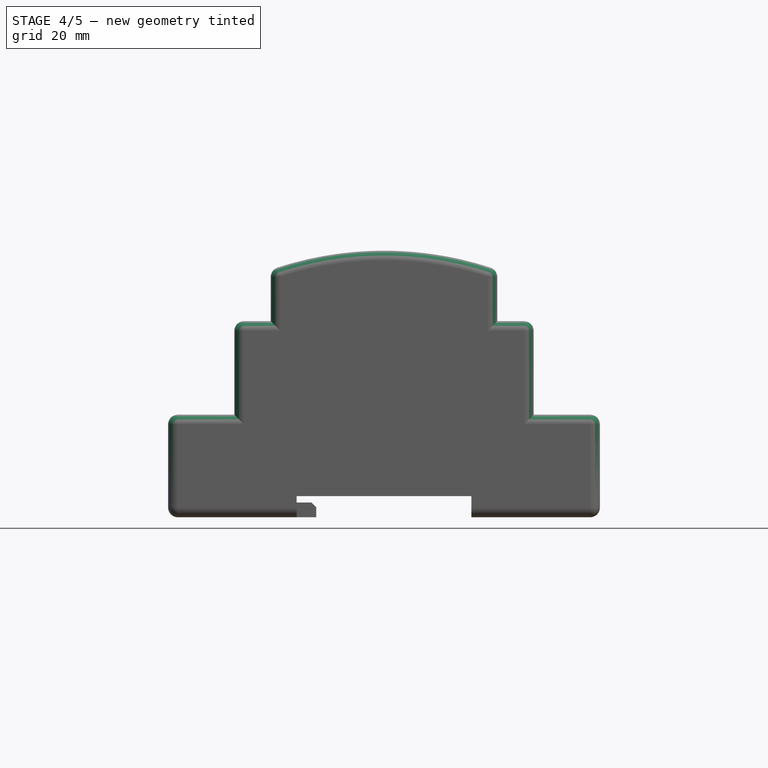
[diagram: stage 4 of 5 — front view after this stage's code; geometry added in this stage tinted green]
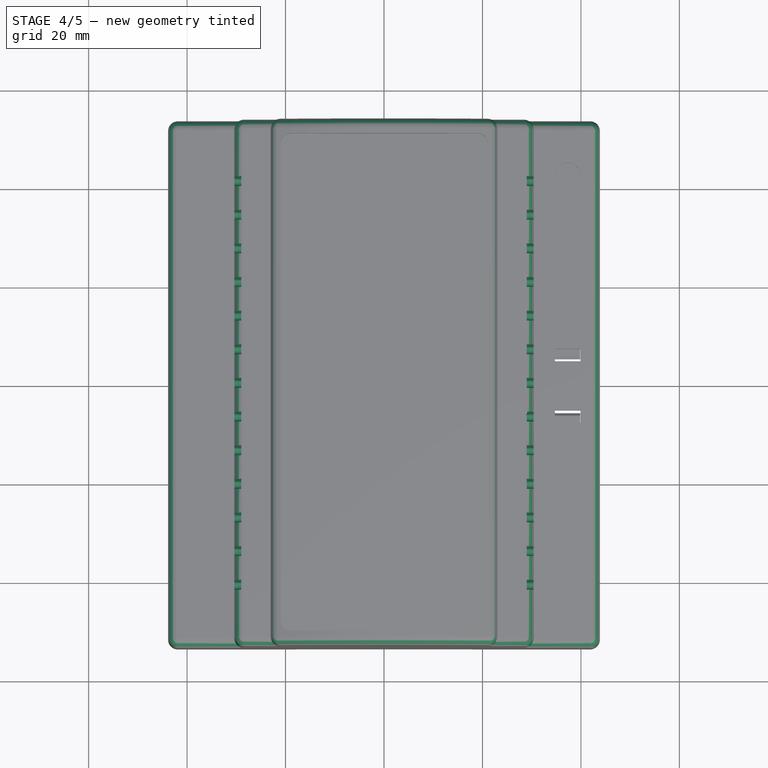
[diagram: stage 4 of 5 — top view after this stage's code; geometry added in this stage tinted green]
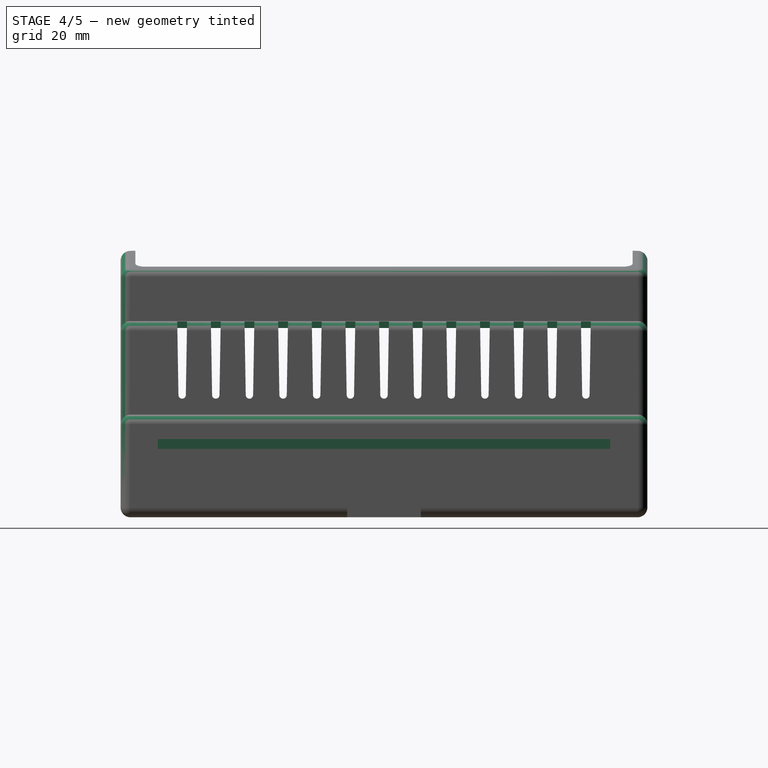
[diagram: stage 4 of 5 — right view after this stage's code; geometry added in this stage tinted green]
FEATURE [PartDesign::Thickness] Thickness
  Base = -> Pocket [Face2]
  BaseFeature = -> Pocket
  Intersection = true
  Join = 0
  Mode = 0
  Refine = true
  Reversed = true
  SupportTransform = false
  Suppressed = false
  Value = 1.4
FEATURE [PartDesign::Fillet] Fillet
  Base = -> Thickness [Edge33,Edge39,Edge29,Edge15,Edge16,Edge14,Edge13,Edge26,Edge25,Edge24,Edge23,Edge22,Edge21,Edge20,Edge19,Edge32,Edge30,Edge2,Edge18,Edge7,Edge4,Edge11,Edge10,Edge9,Edge6,Edge3,Edge12,Edge42,Edge41,Edge47,Edge45,Edge17]
  BaseFeature = -> Thickness
  Radius = 2
  Refine = true
  SupportTransform = false
  Suppressed = false
  UseAllEdges = false
FEATURE [Sketcher::SketchObject] Sketch002
  ArcFitTolerance = 1e-06
  AttachmentSupport = -> [Fillet]
  FullyConstrained = true
  MakeInternals = false
  MapMode = 5
  Placement = pos=(30.4,0,0) rot=(0.57735,0.57735,0.57735;2.0944rad)
  sketch-geometry (8):
    g0: LineSegment StartX=-42 StartY=35.54 StartZ=0 EndX=-40 EndY=35.54 EndZ=0
    g1: LineSegment StartX=-40 StartY=35.54 StartZ=0 EndX=-40.2501 EndY=20.5275 EndZ=0
    g2: LineSegment [constr] StartX=-40.2501 StartY=20.5275 StartZ=0 EndX=-41.7499 EndY=20.5275 EndZ=0
    g3: LineSegment StartX=-41.7499 StartY=20.5275 StartZ=0 EndX=-42 EndY=35.54 EndZ=0
    g4: ArcOfCircle CenterX=-41 CenterY=20.54 CenterZ=0 NormalX=0 NormalY=0 NormalZ=1 AngleXU=0 Radius=0.75 StartAngle=3.15825 EndAngle=6.26653
    g5: LineSegment [constr] StartX=-41 StartY=35.54 StartZ=0 EndX=-41 EndY=20.54 EndZ=0
    g6: LineSegment [constr] StartX=0 StartY=0 StartZ=0 EndX=0 EndY=35.54 EndZ=0
    g7: LineSegment [constr] StartX=0 StartY=35.54 StartZ=0 EndX=-40 EndY=35.54 EndZ=0
  constraints (21):
    c: Horizontal(g0)
    c: Coincident(g0,g1)
    c: Coincident(g1,g2)
    c: Coincident(g2,g3)
    c: Coincident(g3,g0)
    c: DistanceX(g0,g0) = 2
    c: Equal(g1,g3)
    c: Tangent(g1,g4) = 1.5708
    c: Coincident(g4,g2)
    c: Radius(g4) = 0.75
    c: Coincident(g5,g4)
    c: Perpendicular(g5,g0) = 1.5708
    c: DistanceX(g0,g5) = 1
    c: Distance(g5,g5) = 15
    c: Coincident(g6,g-1)
    c: PointOnObject(g6,g-2)
    c: Coincident(g7,g6)
    c: Coincident(g7,g0)
    c: Horizontal(g7)
    c: DistanceY(g6,g6) = 35.54
    c: DistanceX(g7,g7) = 40
FEATURE [PartDesign::Pocket] Pocket001
  BaseFeature = -> Fillet
  Direction = (-1,0,0)
  Length = 3
  Length2 = 5
  Midplane = true
  Profile = -> Sketch002
  ReferenceAxis = -> Sketch002 [N_Axis]
  Refine = true
  Suppressed = false
  Type = 0
FEATURE [PartDesign::LinearPattern] LinearPattern001
  Direction = -> Y_Axis
  Length = 82
  Mode = 0
  Occurrences = 13
  Offset = 6.83333
  Refine = true
  Suppressed = false
  TransformMode = 0
FEATURE [PartDesign::Mirrored] Mirrored
  MirrorPlane = -> YZ_Plane
  Refine = true
  Suppressed = false
  TransformMode = 0
FEATURE [PartDesign::MultiTransform] MultiTransform
  BaseFeature = -> Pocket001
  Originals = -> [Pocket001]
  Refine = true
  Suppressed = false
  TransformMode = 0
  Transformations = -> [LinearPattern001,Mirrored]
FEATURE [Sketcher::SketchObject] Sketch003
  ArcFitTolerance = 1e-06
  ExternalGeometry = -> [MultiTransform]
  FullyConstrained = false
  MakeInternals = false
  MapMode = 5
  Placement = pos=(0,7.3e-15,16.54) rot=(0,0,1;0rad)
  sketch-geometry (7):
    g0: LineSegment [constr] StartX=0 StartY=0 StartZ=0 EndX=118.287 EndY=0 EndZ=0
    g1: LineSegment StartX=39.9 StartY=-42.5 StartZ=0 EndX=39.9 EndY=42.5 EndZ=0
    g2: LineSegment StartX=34.7 StartY=-42.5 StartZ=0 EndX=34.7 EndY=42.5 EndZ=0
    g3: ArcOfCircle CenterX=37.3 CenterY=42.5 CenterZ=0 NormalX=0 NormalY=0 NormalZ=1 AngleXU=0 Radius=2.6 StartAngle=8.8e-15 EndAngle=3.14159
    g4: ArcOfCircle CenterX=37.3 CenterY=-42.5 CenterZ=0 NormalX=0 NormalY=0 NormalZ=1 AngleXU=0 Radius=2.6 StartAngle=3.14159 EndAngle=6.28319
    g5: LineSegment [constr] StartX=37.3 StartY=42.5 StartZ=0 EndX=37.3 EndY=-42.5 EndZ=0
    g6: LineSegment [constr] StartX=39.9 StartY=42.5 StartZ=0 EndX=34.7 EndY=42.5 EndZ=0
  constraints (18):
    c: Coincident(g0,g-1)
    c: PointOnObject(g0,g-1)
    c: Vertical(g1)
    c: Vertical(g2)
    c: Tangent(g2,g3) = 1.5708
    c: Coincident(g3,g1)
    c: Tangent(g2,g4) = 1.5708
    c: Coincident(g4,g1)
    c: Coincident(g5,g3)
    c: Coincident(g5,g4)
    c: Vertical(g5)
    c: Distance(g5,g5) = 85
    c: Radius(g3) = 2.6
    c: Distance(g-2,g5) = 37.3
    c: Distance(g3,g0) = 42.5
    c: Coincident(g6,g1)
    c: Coincident(g6,g2)
    c: Horizontal(g6)
FEATURE [PartDesign::Pocket] Pocket002
  BaseFeature = -> MultiTransform
  Direction = (0,0,-1)
  Length = 0
  Length2 = 5
  Profile = -> Sketch003
  ReferenceAxis = -> Sketch003 [N_Axis]
  Refine = true
  Suppressed = false
  Type = 3
  UpToFace = -> MultiTransform [Face39]
FEATURE [Sketcher::SketchObject] Sketch004
  ArcFitTolerance = 1e-06
  AttachmentSupport = -> [Pocket002]
  ExternalGeometry = -> [Pocket002]
  FullyConstrained = false
  MakeInternals = false
  MapMode = 5
  Placement = pos=(43.85,0,0) rot=(0.57735,0.57735,0.57735;2.0944rad)
  sketch-geometry (5):
    g0: LineSegment [constr] StartX=0 StartY=0 StartZ=0 EndX=0 EndY=67.264 EndZ=0
    g1: LineSegment StartX=-45.925 StartY=1.02e-14 StartZ=0 EndX=-45.925 EndY=11.6 EndZ=0
    g2: LineSegment StartX=-45.925 StartY=11.6 StartZ=0 EndX=45.925 EndY=11.6 EndZ=0
    g3: LineSegment StartX=45.925 StartY=11.6 StartZ=0 EndX=45.925 EndY=-1.07e-14 EndZ=0
    g4: LineSegment StartX=-45.925 StartY=1.02e-14 StartZ=0 EndX=45.925 EndY=-1.07e-14 EndZ=0
  constraints (13):
    c: Coincident(g0,g-1)
    c: PointOnObject(g0,g-2)
    c: Vertical(g1)
    c: Coincident(g1,g2)
    c: Coincident(g2,g3)
    c: Vertical(g3)
    c: Distance(g3,g3) = 11.6
    c: Distance(g2,g2) = 91.85
    c: Coincident(g4,g1)
    c: Coincident(g4,g3)
    c: PointOnObject(g1,g-4)
    c: PointOnObject(g3,g-4)
    c: Symmetric(g2,g1,g-2)
FEATURE [PartDesign::Pocket] Pocket003
  BaseFeature = -> Pocket002
  Direction = (-1,0,0)
  Length = 0
  Length2 = 5
  Profile = -> Sketch004
  ReferenceAxis = -> Sketch004 [N_Axis]
  Refine = true
  Suppressed = false
  Type = 3
  UpToFace = -> Pocket002 [Face11]
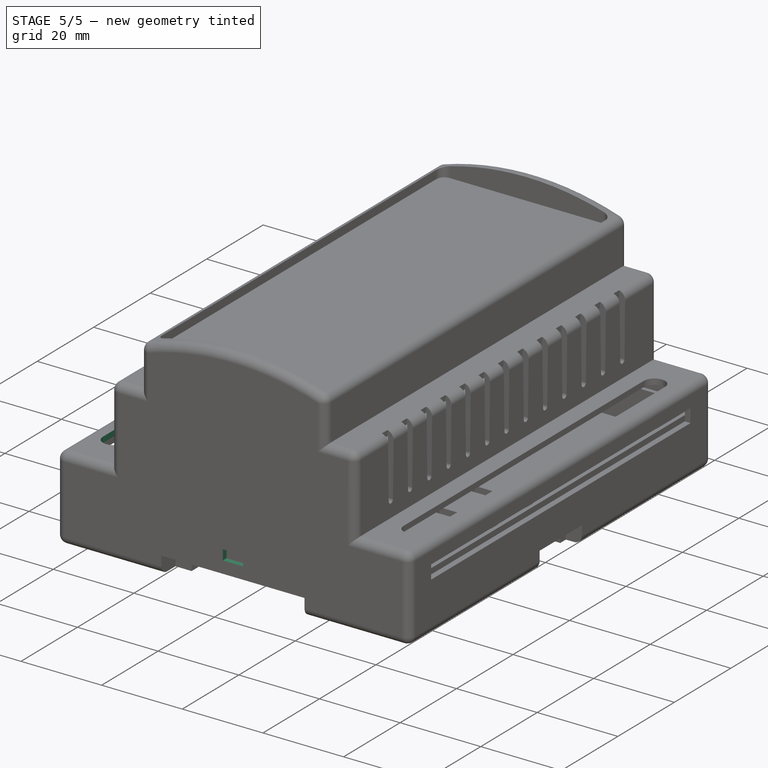
[diagram: stage 5 of 5 — iso view after this stage's code; geometry added in this stage tinted green]
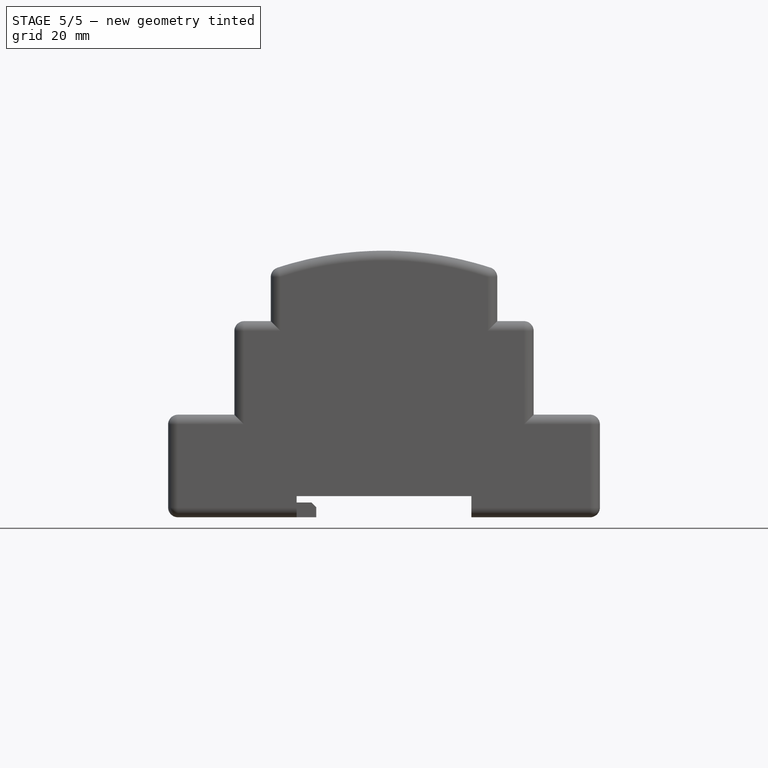
[diagram: stage 5 of 5 — front view after this stage's code; geometry added in this stage tinted green]
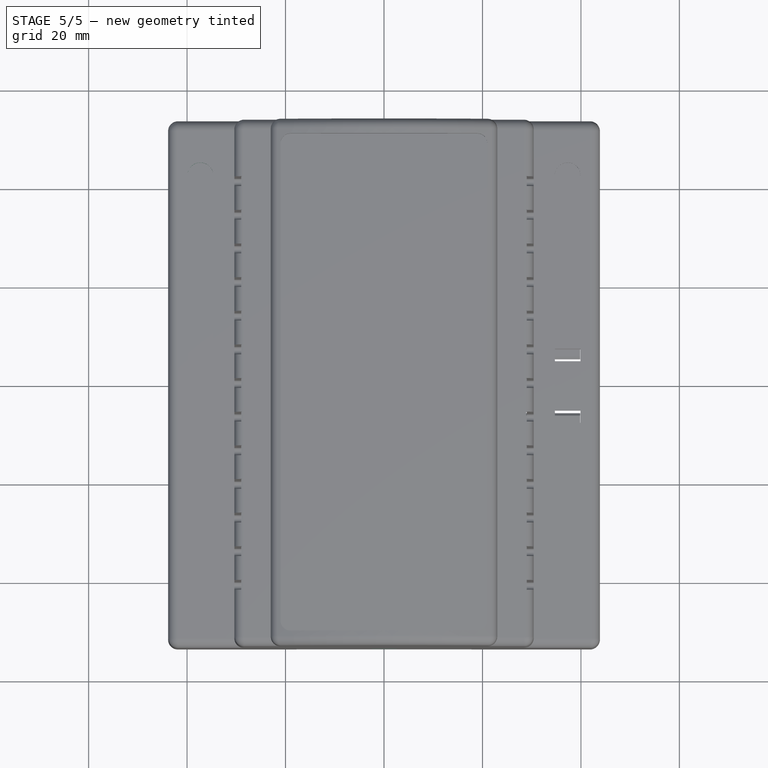
[diagram: stage 5 of 5 — top view after this stage's code; geometry added in this stage tinted green]
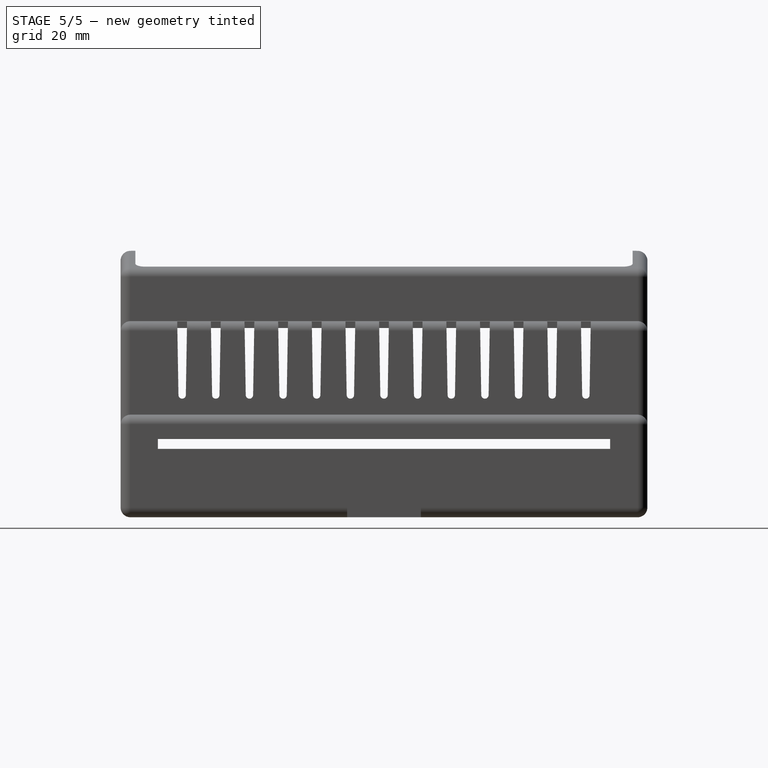
[diagram: stage 5 of 5 — right view after this stage's code; geometry added in this stage tinted green]
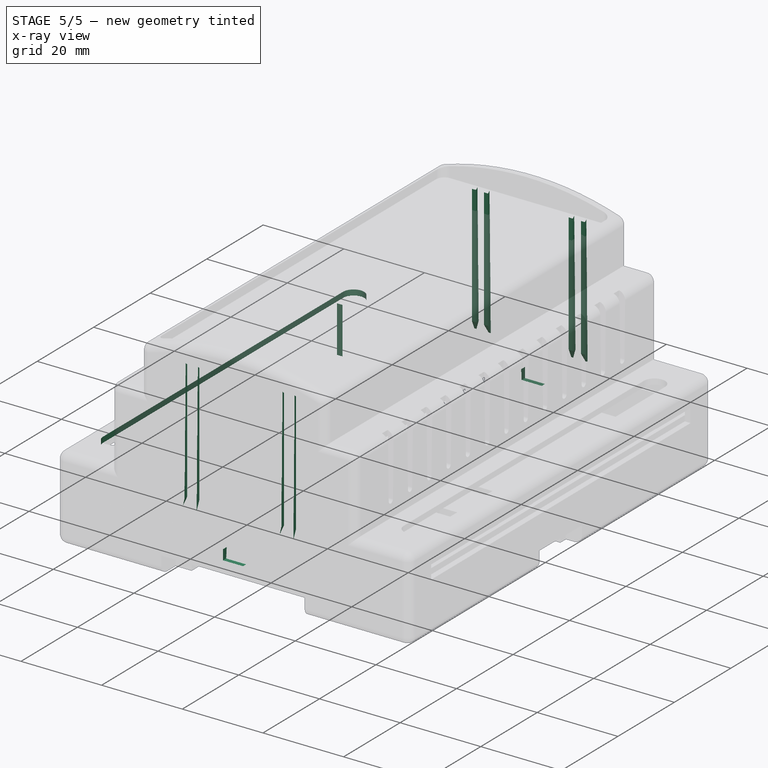
[diagram: stage 5 of 5 — x-ray composite at the iso view; earlier geometry ghosted, this stage's added geometry solid]
FEATURE [PartDesign::Mirrored] Mirrored001
  BaseFeature = -> Pocket003
  MirrorPlane = -> YZ_Plane
  Originals = -> [Pocket003,Pocket002]
  Refine = true
  Suppressed = false
  TransformMode = 0
FEATURE [Sketcher::SketchObject] Sketch005
  ArcFitTolerance = 1e-06
  AttachmentSupport = -> [Mirrored001]
  FullyConstrained = false
  MakeInternals = false
  MapMode = 5
  Placement = pos=(0,-53.5,0) rot=(1,0,0;1.5708rad)
  sketch-geometry (5):
    g0: LineSegment [constr] StartX=0 StartY=0 StartZ=0 EndX=0 EndY=52.1121 EndZ=0
    g1: LineSegment StartX=-2.5 StartY=3 StartZ=0 EndX=2.5 EndY=3 EndZ=0
    g2: LineSegment StartX=2.5 StartY=3 StartZ=0 EndX=2.5 EndY=5.5 EndZ=0
    g3: LineSegment StartX=2.5 StartY=5.5 StartZ=0 EndX=-2.5 EndY=5.5 EndZ=0
    g4: LineSegment StartX=-2.5 StartY=5.5 StartZ=0 EndX=-2.5 EndY=3 EndZ=0
  constraints (13):
    c: Coincident(g0,g-1)
    c: PointOnObject(g0,g-2)
    c: Coincident(g1,g2)
    c: Vertical(g2)
    c: Coincident(g2,g3)
    c: Horizontal(g3)
    c: Coincident(g3,g4)
    c: Coincident(g4,g1)
    c: Vertical(g4)
    c: Symmetric(g1,g1,g0)
    c: DistanceX(g3,g3) = 5
    c: DistanceY(g2,g2) = 2.5
    c: Distance(g-1,g1) = 3
FEATURE [PartDesign::Pocket] Pocket004
  BaseFeature = -> Mirrored001
  Direction = (0,1,-2e-16)
  Length = 0
  Length2 = 5
  Profile = -> Sketch005
  ReferenceAxis = -> Sketch005 [N_Axis]
  Refine = true
  Suppressed = false
  Type = 3
  UpToFace = -> Mirrored001 [Face10]
FEATURE [Sketcher::SketchObject] Sketch006
  ArcFitTolerance = 1e-06
  AttachmentSupport = -> [Pocket004]
  ExternalGeometry = -> [Pocket004]
  FullyConstrained = true
  MakeInternals = false
  MapMode = 5
  Placement = pos=(-1.01e-14,-45.925,0) rot=(0,0.707107,0.707107;3.14159rad)
  sketch-geometry (4):
    g0: LineSegment StartX=42.95 StartY=1 StartZ=0 EndX=42.95 EndY=7e-16 EndZ=0
    g1: LineSegment StartX=42.95 StartY=7e-16 StartZ=0 EndX=42.45 EndY=0 EndZ=0
    g2: LineSegment StartX=42.45 StartY=0 StartZ=0 EndX=42.45 EndY=1 EndZ=0
    g3: LineSegment StartX=42.45 StartY=1 StartZ=0 EndX=42.95 EndY=1 EndZ=0
  constraints (11):
    c: PointOnObject(g0,g-3)
    c: Vertical(g0)
    c: Coincident(g0,g1)
    c: Coincident(g1,g-3)
    c: Coincident(g1,g2)
    c: Vertical(g2)
    c: Coincident(g2,g3)
    c: Coincident(g3,g0)
    c: Horizontal(g3)
    c: DistanceY(g0,g0) = 1
    c: Distance(g3,g3) = 0.5
FEATURE [Sketcher::SketchObject] Sketch007
  ArcFitTolerance = 1e-06
  FullyConstrained = false
  MakeInternals = false
  MapMode = 5
  Placement = pos=(0,-52.1,0) rot=(0,0.707107,0.707107;3.14159rad)
  sketch-geometry (22):
    g0: LineSegment [constr] StartX=0 StartY=0 StartZ=0 EndX=0 EndY=57.1407 EndZ=0
    g1: LineSegment [constr] StartX=-12 StartY=44.54 StartZ=0 EndX=-12 EndY=10.1283 EndZ=0
    g2: LineSegment StartX=-13 StartY=44.54 StartZ=0 EndX=-14 EndY=44.54 EndZ=0
    g3: LineSegment StartX=-14 StartY=44.54 StartZ=0 EndX=-14 EndY=11.6 EndZ=0
    g4: LineSegment StartX=-14 StartY=11.6 StartZ=0 EndX=-13.5 EndY=11.6 EndZ=0
    g5: LineSegment StartX=-13.5 StartY=11.6 StartZ=0 EndX=-13 EndY=13.54 EndZ=0
    g6: LineSegment StartX=-13 StartY=13.54 StartZ=0 EndX=-13 EndY=44.54 EndZ=0
    g7: LineSegment StartX=-11 StartY=44.54 StartZ=0 EndX=-10 EndY=44.54 EndZ=0
    g8: LineSegment StartX=-10 StartY=44.54 StartZ=0 EndX=-10 EndY=11.6 EndZ=0
    g9: LineSegment StartX=-10 StartY=11.6 StartZ=0 EndX=-10.5 EndY=11.6 EndZ=0
    g10: LineSegment StartX=-10.5 StartY=11.6 StartZ=0 EndX=-11 EndY=13.54 EndZ=0
    g11: LineSegment StartX=-11 StartY=13.54 StartZ=0 EndX=-11 EndY=44.54 EndZ=0
    g12: LineSegment StartX=13 StartY=44.54 StartZ=0 EndX=14 EndY=44.54 EndZ=0
    g13: LineSegment StartX=14 StartY=44.54 StartZ=0 EndX=14 EndY=11.6 EndZ=0
    g14: LineSegment StartX=14 StartY=11.6 StartZ=0 EndX=13.5 EndY=11.6 EndZ=0
    g15: LineSegment StartX=13.5 StartY=11.6 StartZ=0 EndX=13 EndY=13.54 EndZ=0
    g16: LineSegment StartX=13 StartY=13.54 StartZ=0 EndX=13 EndY=44.54 EndZ=0
    g17: LineSegment StartX=11 StartY=44.54 StartZ=0 EndX=10 EndY=44.54 EndZ=0
    g18: LineSegment StartX=10 StartY=44.54 StartZ=0 EndX=10 EndY=11.6 EndZ=0
    g19: LineSegment StartX=10 StartY=11.6 StartZ=0 EndX=10.5 EndY=11.6 EndZ=0
    g20: LineSegment StartX=10.5 StartY=11.6 StartZ=0 EndX=11 EndY=13.54 EndZ=0
    g21: LineSegment StartX=11 StartY=13.54 StartZ=0 EndX=11 EndY=44.54 EndZ=0
  constraints (47):
    c: Coincident(g0,g-1)
    c: PointOnObject(g0,g-2)
    c: Vertical(g1)
    c: Coincident(g2,g3)
    c: Vertical(g3)
    c: Coincident(g3,g4)
    c: Coincident(g4,g5)
    c: Coincident(g5,g6)
    c: Coincident(g6,g2)
    c: Vertical(g6)
    c: DistanceX(g2,g2) = 1
    c: Distance(g6,g1) = 1
    c: Distance(g4,g4) = 0.5
    c: Distance(g3,g3) = 32.94
    c: Distance(g6,g6) = 31
    c: Horizontal(g4)
    c: Distance(g0,g1) = 12
    c: PointOnObject(g1,g-4)
    c: PointOnObject(g2,g-4)
    c: PointOnObject(g2,g-4)
    c: Coincident(g7,g8)
    c: Vertical(g8)
    c: Coincident(g8,g9)
    c: Coincident(g9,g10)
    c: Coincident(g10,g11)
    c: Coincident(g11,g7)
    c: Vertical(g11)
    c: Distance(g9,g9) = 0.5
    c: Distance(g8,g8) = 32.94
    c: Distance(g11,g11) = 31
    c: Horizontal(g9)
    c: Coincident(g12,g13)
    c: Coincident(g13,g14)
    c: Coincident(g14,g15)
    c: Coincident(g15,g16)
    c: Coincident(g16,g12)
    c: Distance(g14,g14) = 0.5
    c: Distance(g13,g13) = 32.94
    c: Distance(g16,g16) = 31
    c: Coincident(g17,g18)
    c: Coincident(g18,g19)
    c: Coincident(g19,g20)
    c: Coincident(g20,g21)
    c: Coincident(g21,g17)
    c: Distance(g19,g19) = 0.5
    c: Distance(g18,g18) = 32.94
    c: Distance(g21,g21) = 31
FEATURE [PartDesign::Pad] Pad001
  BaseFeature = -> Pocket004
  Direction = (0,1,-2e-16)
  Length = 1
  Length2 = 10
  Profile = -> Sketch007
  ReferenceAxis = -> Sketch007 [N_Axis]
  Refine = true
  Suppressed = false
  Type = 0
FEATURE [PartDesign::Chamfer] Chamfer
  Angle = 45
  Base = -> Pad001 [Edge486,Edge498,Edge510,Edge522]
  BaseFeature = -> Pad001
  ChamferType = 1
  FlipDirection = false
  Refine = true
  Size = 0.9
  Size2 = 2
  SupportTransform = false
  Suppressed = false
  UseAllEdges = false
FEATURE [PartDesign::Fillet] Fillet001
  Base = -> Chamfer [Edge59,Edge416]
  BaseFeature = -> Chamfer
  Radius = 0.2
  Refine = true
  SupportTransform = false
  Suppressed = false
  UseAllEdges = false
FEATURE [PartDesign::Mirrored] Mirrored002
  BaseFeature = -> Fillet001
  MirrorPlane = -> XZ_Plane
  Originals = -> [Pad001,Chamfer]
  Refine = true
  Suppressed = false
  TransformMode = 0
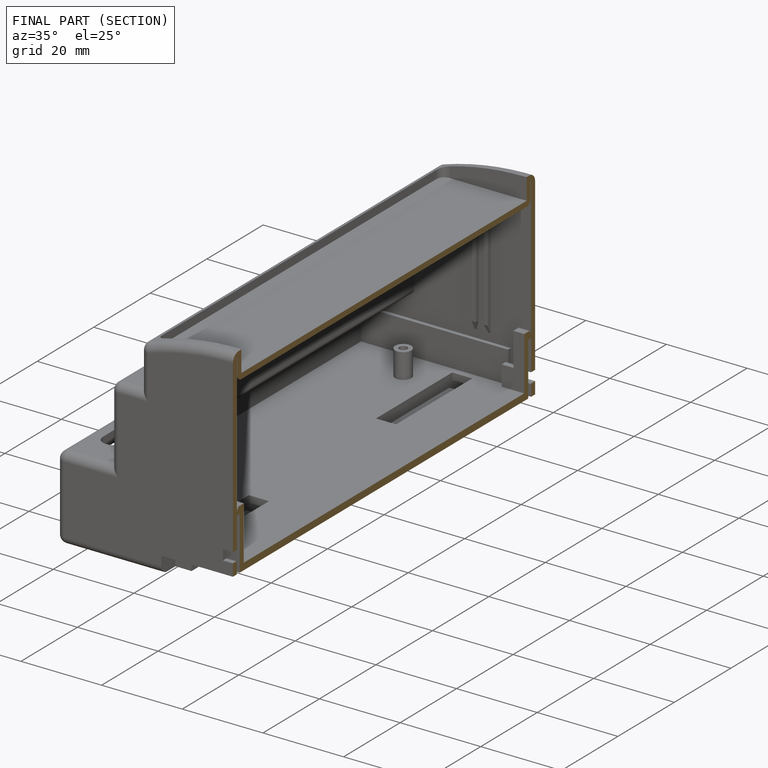
[diagram: finished part — half-section view (interior)]
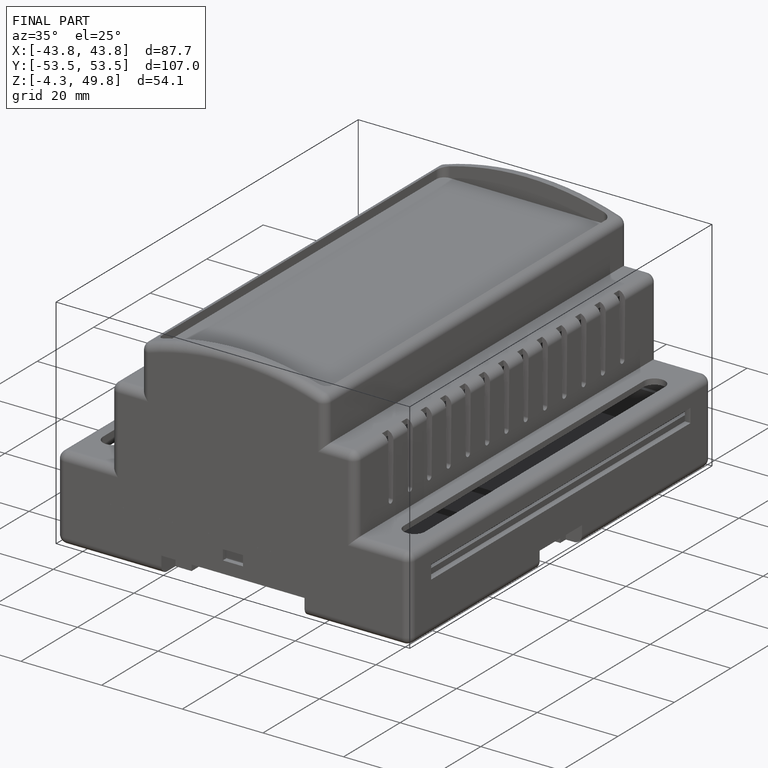
[diagram: finished part — iso view with bounding-box wireframe]
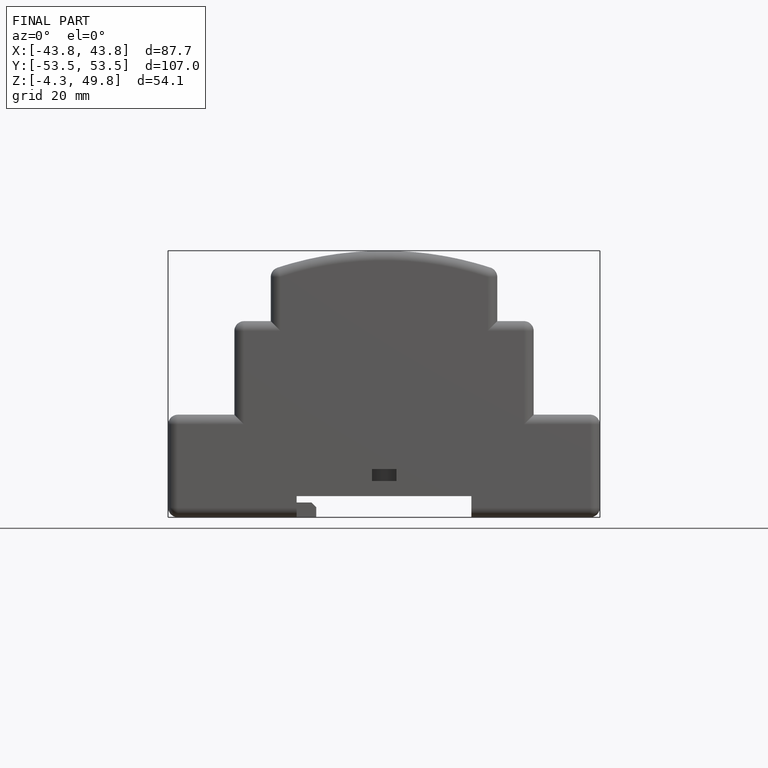
[diagram: finished part — front view with bounding-box wireframe]
